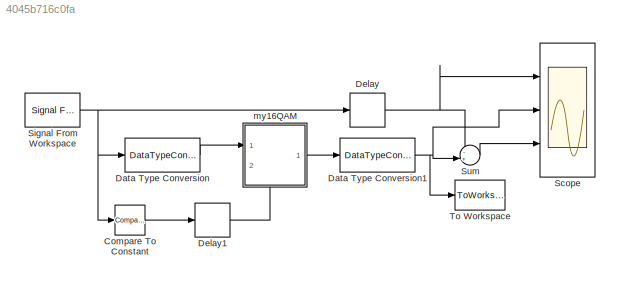
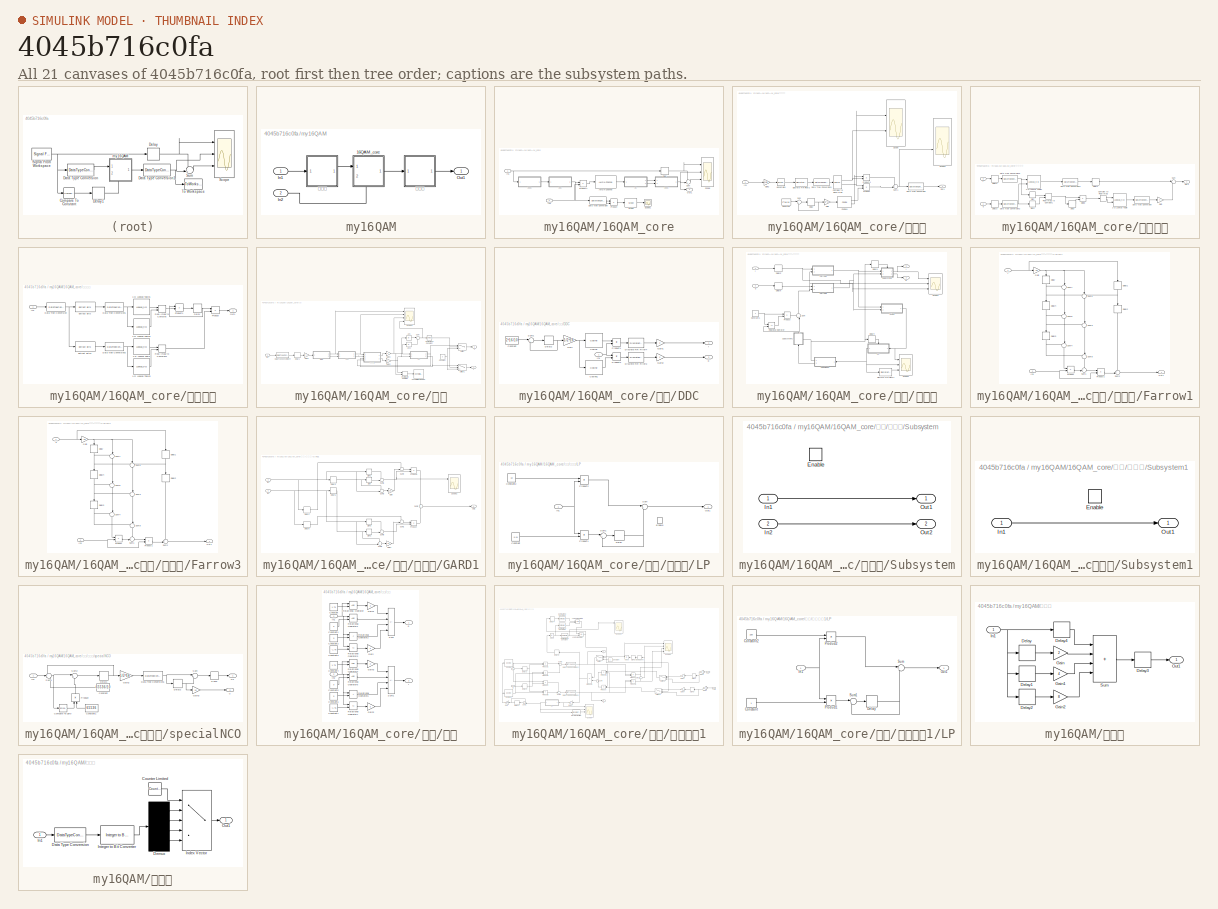
[diagram: thumbnail index - all 21 canvases of the model, root first then tree order]
MODEL slx_4045b716c0fa
KIND model
CONFIG AbsTol = auto
CONFIG EnableMultiTasking = off
CONFIG FixedStep = auto
CONFIG MaxStep = auto
CONFIG MinStep = auto
CONFIG RelTol = 1e-3
CONFIG SampleTimeConstraint = Unconstrained
CONFIG SolverName = VariableStepAuto
CONFIG StartTime = 0.0
CONFIG StopTime = 200
BLOCK [Reference] Compare To Constant  REF=simulink/Logic and Bit
Operations/Compare
To Constant
  Ports = [1, 1]
  SourceBlock = simulink/Logic and Bit\nOperations/Compare\nTo Constant
  SourceProductBaseCode = SL
  SourceType = Compare To Constant
BLOCK [DataTypeConversion] Data Type Conversion
  OutDataTypeStr = int8
  RndMeth = Floor
  SaturateOnIntegerOverflow = off
BLOCK [DataTypeConversion] Data Type Conversion1
  OutDataTypeStr = boolean
  RndMeth = Floor
  SaturateOnIntegerOverflow = off
BLOCK [Delay] Delay
  DelayLength = 48
  InitialCondition = 0
  InputPortMap = u0
  Ports = [1, 1]
  SampleTime = 0.01/4
BLOCK [Delay] Delay1
  DelayLength = 3
  InitialCondition = 0
  InputPortMap = u0
  Ports = [1, 1]
  SampleTime = 0.01
BLOCK [Scope] Scope
  Floating = off
  NumInputPorts = 3
  Ports = [3]
  ScopeSpecificationString = Simulink.scopes.TimeScopeBlockCfg('CurrentConfiguration', extmgr.ConfigurationSet(extmgr.Configuration('Core','General UI',true),extmgr.Configuration('Core','Source UI',true),extmgr.Configuration('Sources','WiredSimulink',true,'DataLoggingVariableName','ScopeData1'),extmgr.Configuration('Visuals','Time Domain',true,'SerializedDisplays',{struct('MinYLimReal','-0.25','MaxYLimReal','2.25','YLabelReal...<+2734ch>
BLOCK [Reference] Signal From Workspace  REF=dspsrcs4/Signal From
Workspace
  Ports = [0, 1]
  SourceBlock = dspsrcs4/Signal From\nWorkspace
  SourceProductBaseCode = DS
  SourceType = Signal From Workspace
BLOCK [Sum] Sum
  AccumDataTypeStr = double
  Inputs = -+|
  OutDataTypeStr = double
  Ports = [2, 1]
BLOCK [ToWorkspace] To Workspace
  MaxDataPoints = inf
  Ports = [1]
  SampleTime = -1
  Save2DSignal = 2-D array (concatenate along first dimension)
  VariableName = yout
BLOCK [SubSystem] my16QAM
  PortSchema = {"entries":[{"content":{"sides":[{"content":{"connectorIds":["In1"]},"type":"ConnectorPlacement.EquallySpacedRectSide","uuid":"334856f7-0435-4d2a-9505-d8ddabddb349"},{"content":{"connectorIds":["Out1"],"side":"RIGHT"},"type":"ConnectorPlacement.EquallySpacedRectSide","uuid":"e3f7a207-8233-4ece-b29f-ed21cdef778a"},{"content":{"connectorIds":[],"side":"TOP"},"type":"ConnectorPlacement.EquallySpacedR...<+391ch>
  Ports = [2, 1]
  RequestExecContextInheritance = off
BLOCK [SubSystem] my16QAM/16QAM_core
  PortSchema = {"entries":[{"content":{"sides":[{"content":{"connectorIds":["In1"]},"type":"ConnectorPlacement.EquallySpacedRectSide","uuid":"334856f7-0435-4d2a-9505-d8ddabddb349"},{"content":{"connectorIds":["Out1"],"side":"RIGHT"},"type":"ConnectorPlacement.EquallySpacedRectSide","uuid":"e3f7a207-8233-4ece-b29f-ed21cdef778a"},{"content":{"connectorIds":[],"side":"TOP"},"type":"ConnectorPlacement.EquallySpacedR...<+389ch>
  Ports = [2, 1]
  RequestExecContextInheritance = off
BLOCK [Reference] my16QAM/16QAM_core/AWGN Channel  REF=commchan3/AWGN
Channel
  Ports = [1, 1]
  SourceBlock = commchan3/AWGN\nChannel
  SourceProductBaseCode = CM
  SourceType = AWGN Channel
  UserDataPersistent = on
BLOCK [DataTypeConversion] my16QAM/16QAM_core/Data Type Conversion
  RndMeth = Floor
  SaturateOnIntegerOverflow = off
BLOCK [Delay] my16QAM/16QAM_core/Delay
  DelayLength = 10
  InitialCondition = 0
  InputPortMap = u0
  Ports = [1, 1]
  SampleTime = 0.01
BLOCK [Inport] my16QAM/16QAM_core/In1
BLOCK [Inport] my16QAM/16QAM_core/In2
  Port = 2
BLOCK [Reference] my16QAM/16QAM_core/Mean  REF=dspstat3/Mean
  Ports = [1, 1]
  SourceBlock = dspstat3/Mean
  SourceProductBaseCode = DS
  SourceType = Mean
  UserDataPersistent = on
BLOCK [Outport] my16QAM/16QAM_core/Out1
BLOCK [Product] my16QAM/16QAM_core/Product
  Ports = [2, 1]
BLOCK [Product] my16QAM/16QAM_core/Product1
  Ports = [2, 1]
BLOCK [Scope] my16QAM/16QAM_core/Scope
  Floating = off
  NumInputPorts = 3
  Ports = [3]
  ScopeSpecificationString = Simulink.scopes.TimeScopeBlockCfg('CurrentConfiguration', extmgr.ConfigurationSet(extmgr.Configuration('Core','General UI',true),extmgr.Configuration('Core','Source UI',true),extmgr.Configuration('Sources','WiredSimulink',true,'DataLoggingVariableName','ScopeData1'),extmgr.Configuration('Visuals','Time Domain',true,'SerializedDisplays',{struct('MinYLimReal','-3.75','MaxYLimReal','33.75','YLabelRea...<+2699ch>
BLOCK [Scope] my16QAM/16QAM_core/Scope1
  Floating = off
  NumInputPorts = 1
  Ports = [1]
  ScopeSpecificationString = Simulink.scopes.TimeScopeBlockCfg('CurrentConfiguration', extmgr.ConfigurationSet(extmgr.Configuration('Core','General UI',true),extmgr.Configuration('Core','Source UI',true),extmgr.Configuration('Sources','WiredSimulink',true,'DataLoggingVariableName','ScopeData1'),extmgr.Configuration('Visuals','Time Domain',true,'SerializedDisplays',{struct('MinYLimReal','0.02759','MaxYLimReal','0.02792','YLabe...<+1465ch>
BLOCK [Sum] my16QAM/16QAM_core/Sum
  AccumDataTypeStr = double
  Inputs = -+|
  OutDataTypeStr = double
  Ports = [2, 1]
BLOCK [SubSystem] my16QAM/16QAM_core/发射机
  Ports = [1, 1]
  RequestExecContextInheritance = off
BLOCK [ComplexToRealImag] my16QAM/16QAM_core/发射机/Complex to Real-Imag
  Ports = [1, 2]
BLOCK [Constant] my16QAM/16QAM_core/发射机/Constant
  Value = 2^16/10
BLOCK [Reference] my16QAM/16QAM_core/发射机/Cosine1  REF=simulink/Lookup
Tables/Cosine
  Ports = [1, 2]
  SourceBlock = simulink/Lookup\nTables/Cosine
  SourceProductBaseCode = SL
  SourceType = Sine and Cosine
BLOCK [DataTypeConversion] my16QAM/16QAM_core/发射机/Data Type Conversion
  OutDataTypeStr = double
  RndMeth = Floor
  SaturateOnIntegerOverflow = off
BLOCK [DataTypeConversion] my16QAM/16QAM_core/发射机/Data Type Conversion1
  OutDataTypeStr = fixdt(1,32,28)
  RndMeth = Floor
  SaturateOnIntegerOverflow = off
BLOCK [Delay] my16QAM/16QAM_core/发射机/Delay
  DelayLength = 1
  InitialCondition = 0
  InputPortMap = u0
  Ports = [1, 1]
  SampleTime = 0.001
BLOCK [DiscreteFir] my16QAM/16QAM_core/发射机/Discrete FIR Filter2
  Coefficients = [-0.0119566381847077	-0.00554510890605436	0.00241382573479933	0.0111377436911783	0.0196550101509641	0.0268984171784200	0.0318197882559029	0.0335144832609033	0.0313427539687735	0.0250342434675171	0.0147627477015526	0.00118065713392810	-0.0145939012931128	-0.0310396234166703	-0.0463415853998726	-0.0585399944060724	-0.0657057782491950	-0.0661271775764019	-0.0584895064408425	-0.0420300071775653	-0.016...<+773ch>  <repeated x3 — deduplicated; at blocks: Discrete FIR Filter2, Discrete FIR Filter3, Discrete FIR Filter4>
  InputPortMap = u0
  OutputPortMap = o0
  Ports = [1, 1]
BLOCK [Gain] my16QAM/16QAM_core/发射机/Gain
  Gain = 1/2^16
BLOCK [Gain] my16QAM/16QAM_core/发射机/Gain2
  Gain = 1/sqrt(2)/3
  OutDataTypeStr = fixdt(1,32,28)
BLOCK [Inport] my16QAM/16QAM_core/发射机/In1
BLOCK [Outport] my16QAM/16QAM_core/发射机/Out1
BLOCK [Product] my16QAM/16QAM_core/发射机/Product
  OutDataTypeStr = fixdt(1,32,28)
  Ports = [2, 1]
BLOCK [Product] my16QAM/16QAM_core/发射机/Product1
  OutDataTypeStr = fixdt(1,32,28)
  Ports = [2, 1]
BLOCK [Scope] my16QAM/16QAM_core/发射机/Scope
  Floating = off
  NumInputPorts = 2
  Ports = [2]
  ScopeSpecificationString = Simulink.scopes.TimeScopeBlockCfg('CurrentConfiguration', extmgr.ConfigurationSet(extmgr.Configuration('Core','General UI',true),extmgr.Configuration('Core','Source UI',true),extmgr.Configuration('Sources','WiredSimulink',true,'DataLoggingVariableName','ScopeData3'),extmgr.Configuration('Visuals','Time Domain',true,'SerializedDisplays',{struct('MinYLimReal','-0.50844','MaxYLimReal','0.5141','YLabe...<+2302ch>
BLOCK [Scope] my16QAM/16QAM_core/发射机/Scope2
  Floating = off
  NumInputPorts = 2
  Ports = [2]
  ScopeSpecificationString = Simulink.scopes.TimeScopeBlockCfg('CurrentConfiguration', extmgr.ConfigurationSet(extmgr.Configuration('Core','General UI',true),extmgr.Configuration('Core','Source UI',true),extmgr.Configuration('Sources','WiredSimulink',true,'DataLoggingVariableName','ScopeData1'),extmgr.Configuration('Visuals','Time Domain',true,'SerializedDisplays',{struct('MinYLimReal','-1.00000','MaxYLimReal','1.00000','YLab...<+2201ch>
BLOCK [Sum] my16QAM/16QAM_core/发射机/Sum
  Inputs = |++
  OutDataTypeStr = fixdt(0,32,16)
  OutMax = [2^16-1]
  OutMin = [0]
  Ports = [2, 1]
BLOCK [Sum] my16QAM/16QAM_core/发射机/Sum1
  Inputs = ++|
  OutDataTypeStr = fixdt(1,32,28)
  Ports = [2, 1]
BLOCK [Reference] my16QAM/16QAM_core/发射机/Upsample1  REF=dspsigops/Upsample
  Ports = [1, 1]
  SourceBlock = dspsigops/Upsample
  SourceProductBaseCode = DS
  SourceType = Upsample
  UserDataPersistent = on
BLOCK [SubSystem] my16QAM/16QAM_core/差分解调
  Ports = [2, 1]
  RequestExecContextInheritance = off
BLOCK [Lookup_n-D] my16QAM/16QAM_core/差分解调/2-D Lookup Table
  BreakpointsForDimension1 = [-1 0 1]
  BreakpointsForDimension2 = [-1 0 1]
  ExtrapMethod = Clip
  InputPortMap = u0,u1
  InternalRulePriority = Speed
  Ports = [2, 1]
  RndMeth = Simplest
  Table = [0 3 0;2 0 1;0 0 0]
BLOCK [Lookup_n-D] my16QAM/16QAM_core/差分解调/2-D Lookup Table1
  BreakpointsForDimension1 = [-3 -1 1 3]
  BreakpointsForDimension2 = [-3 -1 1 3]
  ExtrapMethod = Clip
  InputPortMap = u0,u1
  InternalRulePriority = Speed
  Ports = [2, 1]
  RndMeth = Simplest
  Table = [0 2 1 0; 1 3 3 2; 2 3 3 1; 0 1 2 0]
BLOCK [ComplexToRealImag] my16QAM/16QAM_core/差分解调/Complex to Real-Imag
  Ports = [1, 2]
BLOCK [DataTypeConversion] my16QAM/16QAM_core/差分解调/Data Type Conversion
  OutDataTypeStr = uint8
  RndMeth = Floor
  SaturateOnIntegerOverflow = off
BLOCK [DataTypeConversion] my16QAM/16QAM_core/差分解调/Data Type Conversion1
  OutDataTypeStr = uint8
  RndMeth = Floor
  SaturateOnIntegerOverflow = off
BLOCK [DataTypeConversion] my16QAM/16QAM_core/差分解调/Data Type Conversion2
  OutDataTypeStr = int8
  RndMeth = Floor
  SaturateOnIntegerOverflow = off
BLOCK [DataTypeConversion] my16QAM/16QAM_core/差分解调/Data Type Conversion3
  OutDataTypeStr = int8
  RndMeth = Floor
  SaturateOnIntegerOverflow = off
BLOCK [Delay] my16QAM/16QAM_core/差分解调/Delay
  DelayLength = 1
  InitialCondition = 1
  InputPortMap = u0
  Ports = [1, 1]
  SampleTime = 0.01
BLOCK [Delay] my16QAM/16QAM_core/差分解调/Delay1
  DelayLength = 1
  InitialCondition = 1
  InputPortMap = u0
  Ports = [1, 1]
  SampleTime = 0.01
BLOCK [Delay] my16QAM/16QAM_core/差分解调/Delay2
  DelayLength = 1
  InitialCondition = 1
  InputPortMap = u0
  Ports = [1, 1]
  SampleTime = 0.01
BLOCK [Delay] my16QAM/16QAM_core/差分解调/Delay3
  DelayLength = 1
  InitialCondition = 1
  InputPortMap = u0
  Ports = [1, 1]
  SampleTime = 0.01
BLOCK [Product] my16QAM/16QAM_core/差分解调/Divide
  Inputs = */
  OutDataTypeStr = int8
  Ports = [2, 1]
BLOCK [Gain] my16QAM/16QAM_core/差分解调/Gain
  Gain = 4
BLOCK [Outport] my16QAM/16QAM_core/差分解调/Out1
BLOCK [RealImagToComplex] my16QAM/16QAM_core/差分解调/Real-Imag to Complex1
  Ports = [2, 1]
BLOCK [Signum] my16QAM/16QAM_core/差分解调/Sign
BLOCK [Signum] my16QAM/16QAM_core/差分解调/Sign1
BLOCK [Sum] my16QAM/16QAM_core/差分解调/Sum
  Inputs = |++
  Ports = [2, 1]
BLOCK [Inport] my16QAM/16QAM_core/差分解调/i
  Port = 2
BLOCK [Inport] my16QAM/16QAM_core/差分解调/q
BLOCK [SubSystem] my16QAM/16QAM_core/差分调制
  Ports = [1, 1]
  RequestExecContextInheritance = off
BLOCK [Lookup_n-D] my16QAM/16QAM_core/差分调制/1-D Lookup Table
  BreakpointsForDimension1 = [0:3]
  ExtrapMethod = Clip
  InputPortMap = u0
  InternalRulePriority = Speed
  NumberOfTableDimensions = 1
  Ports = [1, 1]
  RndMeth = Simplest
  Table = [3 1 3 1]
BLOCK [Lookup_n-D] my16QAM/16QAM_core/差分调制/1-D Lookup Table1
  BreakpointsForDimension1 = [0:3]
  ExtrapMethod = Clip
  InputPortMap = u0
  InternalRulePriority = Speed
  NumberOfTableDimensions = 1
  Ports = [1, 1]
  RndMeth = Simplest
  Table = [1 0 0 -1]
BLOCK [Lookup_n-D] my16QAM/16QAM_core/差分调制/1-D Lookup Table2
  BreakpointsForDimension1 = [0:3]
  ExtrapMethod = Clip
  InputPortMap = u0
  InternalRulePriority = Speed
  NumberOfTableDimensions = 1
  Ports = [1, 1]
  RndMeth = Simplest
  Table = [0 1 -1 0]
BLOCK [Lookup_n-D] my16QAM/16QAM_core/差分调制/1-D Lookup Table3
  BreakpointsForDimension1 = [0:3]
  ExtrapMethod = Clip
  InputPortMap = u0
  InternalRulePriority = Speed
  NumberOfTableDimensions = 1
  Ports = [1, 1]
  RndMeth = Simplest
  Table = [3 3 1 1]
BLOCK [DataTypeConversion] my16QAM/16QAM_core/差分调制/Data Type Conversion
  OutDataTypeStr = fixdt(0,4,0)
  RndMeth = Floor
  SaturateOnIntegerOverflow = off
BLOCK [DataTypeConversion] my16QAM/16QAM_core/差分调制/Data Type Conversion1
  OutDataTypeStr = int8
  RndMeth = Floor
  SaturateOnIntegerOverflow = off
BLOCK [DataTypeConversion] my16QAM/16QAM_core/差分调制/Data Type Conversion2
  OutDataTypeStr = fixdt(0,4,0)
  RndMeth = Floor
  SaturateOnIntegerOverflow = off
BLOCK [Delay] my16QAM/16QAM_core/差分调制/Delay
  DelayLength = 1
  InitialCondition = 1
  InputPortMap = u0
  Ports = [1, 1]
  SampleTime = 0.01
BLOCK [Reference] my16QAM/16QAM_core/差分调制/Extract Bits  REF=simulink/Logic and Bit
Operations/Extract Bits
  Ports = [1, 1]
  SourceBlock = simulink/Logic and Bit\nOperations/Extract Bits
  SourceProductBaseCode = SL
  SourceType = Extract Bits
BLOCK [Reference] my16QAM/16QAM_core/差分调制/Extract Bits1  REF=simulink/Logic and Bit
Operations/Extract Bits
  Ports = [1, 1]
  SourceBlock = simulink/Logic and Bit\nOperations/Extract Bits
  SourceProductBaseCode = SL
  SourceType = Extract Bits
BLOCK [Inport] my16QAM/16QAM_core/差分调制/In1
BLOCK [Outport] my16QAM/16QAM_core/差分调制/Out1
BLOCK [Product] my16QAM/16QAM_core/差分调制/Product
  OutDataTypeStr = fixdt(1,32,28)
  Ports = [2, 1]
BLOCK [Product] my16QAM/16QAM_core/差分调制/Product1
  OutDataTypeStr = int8
  Ports = [2, 1]
BLOCK [RealImagToComplex] my16QAM/16QAM_core/差分调制/Real-Imag to Complex
  Ports = [2, 1]
BLOCK [RealImagToComplex] my16QAM/16QAM_core/差分调制/Real-Imag to Complex1
  Ports = [2, 1]
BLOCK [SubSystem] my16QAM/16QAM_core/解调
  Ports = [1, 2]
  RequestExecContextInheritance = off
BLOCK [Abs] my16QAM/16QAM_core/解调/Abs
  SaturateOnIntegerOverflow = off
BLOCK [Abs] my16QAM/16QAM_core/解调/Abs1
  SaturateOnIntegerOverflow = off
BLOCK [Reference] my16QAM/16QAM_core/解调/Compare To Constant  REF=simulink/Logic and Bit
Operations/Compare
To Constant
  Ports = [1, 1]
  SourceBlock = simulink/Logic and Bit\nOperations/Compare\nTo Constant
  SourceProductBaseCode = SL
  SourceType = Compare To Constant
BLOCK [Constant] my16QAM/16QAM_core/解调/Constant
  SampleTime = 0.01
  Value = 3
BLOCK [ConstellationDiagram] my16QAM/16QAM_core/解调/Constellation Diagram
  Ports = [1]
  ScopeSpecificationString = comm.scopes.ConstellationDiagramBlockCfg('CurrentConfiguration', extmgr.ConfigurationSet(extmgr.Configuration('Core','General UI',true),extmgr.Configuration('Core','Source UI',true),extmgr.Configuration('Sources','WiredSimulink',true),extmgr.Configuration('Sources','Simulink',false),extmgr.Configuration('Sources','File',false),extmgr.Configuration('Sources','Workspace',false),extmgr.Configuration(...<+2438ch>
BLOCK [SubSystem] my16QAM/16QAM_core/解调/DDC
  Ports = [1, 2]
  RequestExecContextInheritance = off
BLOCK [Constant] my16QAM/16QAM_core/解调/DDC/Constant
  Value = 2^16/10
BLOCK [Reference] my16QAM/16QAM_core/解调/DDC/Cosine  REF=simulink/Lookup
Tables/Cosine
  Ports = [1, 1]
  SourceBlock = simulink/Lookup\nTables/Cosine
  SourceProductBaseCode = SL
  SourceType = Sine and Cosine
BLOCK [Reference] my16QAM/16QAM_core/解调/DDC/Cosine1  REF=simulink/Lookup
Tables/Cosine
  Ports = [1, 1]
  SourceBlock = simulink/Lookup\nTables/Cosine
  SourceProductBaseCode = SL
  SourceType = Sine and Cosine
BLOCK [Delay] my16QAM/16QAM_core/解调/DDC/Delay2
  DelayLength = 1
  InitialCondition = 0
  InputPortMap = u0
  Ports = [1, 1]
  SampleTime = 0.001
BLOCK [DiscreteFir] my16QAM/16QAM_core/解调/DDC/Discrete FIR Filter3
  InputPortMap = u0
  OutputPortMap = o0
  Ports = [1, 1]
BLOCK [DiscreteFir] my16QAM/16QAM_core/解调/DDC/Discrete FIR Filter4
  InputPortMap = u0
  OutputPortMap = o0
  Ports = [1, 1]
BLOCK [Gain] my16QAM/16QAM_core/解调/DDC/Gain
  Gain = 1/2^16
BLOCK [Gain] my16QAM/16QAM_core/解调/DDC/Gain1
  Gain = 2
  OutDataTypeStr = fixdt(1,32,28)
BLOCK [Gain] my16QAM/16QAM_core/解调/DDC/Gain2
  Gain = 2
  OutDataTypeStr = fixdt(1,32,28)
BLOCK [Inport] my16QAM/16QAM_core/解调/DDC/In1
BLOCK [Product] my16QAM/16QAM_core/解调/DDC/Product1
  OutDataTypeStr = fixdt(1,32,28)
  Ports = [2, 1]
BLOCK [Product] my16QAM/16QAM_core/解调/DDC/Product2
  OutDataTypeStr = fixdt(1,32,28)
  Ports = [2, 1]
BLOCK [Sum] my16QAM/16QAM_core/解调/DDC/Sum1
  Inputs = |++
  OutDataTypeStr = fixdt(0,32,16)
  OutMax = [2^16-1]
  OutMin = [0]
  Ports = [2, 1]
BLOCK [Outport] my16QAM/16QAM_core/解调/DDC/i
BLOCK [Outport] my16QAM/16QAM_core/解调/DDC/q
  Port = 2
BLOCK [DataTypeConversion] my16QAM/16QAM_core/解调/Data Type Conversion4
  OutDataTypeStr = fixdt(1,32,28)
  RndMeth = Floor
  SaturateOnIntegerOverflow = off
BLOCK [Delay] my16QAM/16QAM_core/解调/Delay1
  DelayLength = 1
  InitialCondition = 0
  InputPortMap = u0
  Ports = [1, 1]
  SampleTime = 0.001
BLOCK [Gain] my16QAM/16QAM_core/解调/Gain1
  Gain = 2
  OutDataTypeStr = fixdt(1,32,28)
BLOCK [Gain] my16QAM/16QAM_core/解调/Gain2
  Gain = 2
  OutDataTypeStr = fixdt(1,32,28)
BLOCK [Gain] my16QAM/16QAM_core/解调/Gain3
  Gain = 2
  OutDataTypeStr = fixdt(1,32,28)
BLOCK [Inport] my16QAM/16QAM_core/解调/In1
BLOCK [RealImagToComplex] my16QAM/16QAM_core/解调/Real-Imag to Complex
  Ports = [2, 1]
BLOCK [Scope] my16QAM/16QAM_core/解调/Scope3
  Floating = off
  NumInputPorts = 4
  Ports = [4]
  ScopeSpecificationString = Simulink.scopes.TimeScopeBlockCfg('CurrentConfiguration', extmgr.ConfigurationSet(extmgr.Configuration('Core','General UI',true),extmgr.Configuration('Core','Source UI',true),extmgr.Configuration('Sources','WiredSimulink',true,'DataLoggingVariableName','ScopeData1'),extmgr.Configuration('Visuals','Time Domain',true,'SerializedDisplays',{struct('MinYLimReal','-3.94044','MaxYLimReal','3.98282','YLab...<+3843ch>
BLOCK [Sum] my16QAM/16QAM_core/解调/Sum
  Inputs = |++
  OutDataTypeStr = fixdt(1,32,28)
  Ports = [2, 1]
BLOCK [Switch] my16QAM/16QAM_core/解调/Switch
  Criteria = u2 > Threshold
  InputSameDT = off
  SaturateOnIntegerOverflow = off
BLOCK [Switch] my16QAM/16QAM_core/解调/Switch1
  Criteria = u2 > Threshold
  InputSameDT = off
  SaturateOnIntegerOverflow = off
BLOCK [Outport] my16QAM/16QAM_core/解调/i
  Port = 2
BLOCK [Outport] my16QAM/16QAM_core/解调/q
BLOCK [SubSystem] my16QAM/16QAM_core/解调/位同步
  Ports = [2, 2]
  RequestExecContextInheritance = off
BLOCK [Constant] my16QAM/16QAM_core/解调/位同步/Constant1
  OutDataTypeStr = fixdt(1,32,28)
  SampleTime = 0.01
BLOCK [Delay] my16QAM/16QAM_core/解调/位同步/Delay3
  InitialCondition = 0
  InputPortMap = u0
  Ports = [1, 1]
BLOCK [Delay] my16QAM/16QAM_core/解调/位同步/Delay4
  InitialCondition = 0
  InputPortMap = u0
  Ports = [1, 1]
BLOCK [Delay] my16QAM/16QAM_core/解调/位同步/Delay5
  DelayLength = 1
  InitialCondition = 0
  InputPortMap = u0
  Ports = [1, 1]
  SampleTime = 0.001
BLOCK [Delay] my16QAM/16QAM_core/解调/位同步/Delay6
  DelayLength = 1
  InitialCondition = 0
  InputPortMap = u0
  Ports = [1, 1]
  SampleTime = 0.001
BLOCK [DiscreteFir] my16QAM/16QAM_core/解调/位同步/Discrete FIR Filter4
  Coefficients = [5.38827670327720e-05	8.37859864059126e-06	9.02577071280919e-06	9.70599515144445e-06	1.04165818557214e-05	1.11621497031896e-05	1.19399905979190e-05	1.27547662205456e-05	1.36038280216497e-05	1.44919424768979e-05	1.54165002359471e-05	1.63821647738810e-05	1.73863448370645e-05	1.84338552877666e-05	1.95220392829791e-05	2.06555805408248e-05	2.18322698177188e-05	2.30558422383026e-05	2.43269378472256e-05	...<+12509ch>
  Commented = through
  InputPortMap = u0
  OutputPortMap = o0
  Ports = [1, 1]
BLOCK [SubSystem] my16QAM/16QAM_core/解调/位同步/Farrow1
  Ports = [2, 1]
  RequestExecContextInheritance = off
BLOCK [Delay] my16QAM/16QAM_core/解调/位同步/Farrow1/Delay
  DelayLength = 1
  InitialCondition = 0
  InputPortMap = u0
  NameLocation = left
  Ports = [1, 1]
BLOCK [Delay] my16QAM/16QAM_core/解调/位同步/Farrow1/Delay1
  DelayLength = 1
  InitialCondition = 0
  InputPortMap = u0
  NameLocation = left
  Ports = [1, 1]
BLOCK [Delay] my16QAM/16QAM_core/解调/位同步/Farrow1/Delay2
  DelayLength = 1
  InitialCondition = 0
  InputPortMap = u0
  NameLocation = left
  Ports = [1, 1]
BLOCK [Delay] my16QAM/16QAM_core/解调/位同步/Farrow1/Delay3
  DelayLength = 1
  InitialCondition = 0
  InputPortMap = u0
  NameLocation = left
  Ports = [1, 1]
BLOCK [Delay] my16QAM/16QAM_core/解调/位同步/Farrow1/Delay4
  DelayLength = 1
  InitialCondition = 0
  InputPortMap = u0
  NameLocation = left
  Ports = [1, 1]
BLOCK [Gain] my16QAM/16QAM_core/解调/位同步/Farrow1/Gain
  Gain = -0.5
  OutDataTypeStr = fixdt(1,32,28)
BLOCK [Inport] my16QAM/16QAM_core/解调/位同步/Farrow1/In3
  Port = 2
BLOCK [Outport] my16QAM/16QAM_core/解调/位同步/Farrow1/Out1
BLOCK [Product] my16QAM/16QAM_core/解调/位同步/Farrow1/Product
  OutDataTypeStr = fixdt(1,32,28)
  Ports = [2, 1]
BLOCK [Product] my16QAM/16QAM_core/解调/位同步/Farrow1/Product1
  OutDataTypeStr = fixdt(1,32,28)
  Ports = [2, 1]
BLOCK [Sum] my16QAM/16QAM_core/解调/位同步/Farrow1/Sum1
  Inputs = ++|
  Ports = [2, 1]
BLOCK [Sum] my16QAM/16QAM_core/解调/位同步/Farrow1/Sum2
  Inputs = ++|
  OutDataTypeStr = fixdt(1,32,28)
  Ports = [2, 1]
BLOCK [Sum] my16QAM/16QAM_core/解调/位同步/Farrow1/Sum3
  Inputs = ++|
  NameLocation = left
  Ports = [2, 1]
BLOCK [Sum] my16QAM/16QAM_core/解调/位同步/Farrow1/Sum4
  Inputs = -+|
  NameLocation = left
  Ports = [2, 1]
BLOCK [Sum] my16QAM/16QAM_core/解调/位同步/Farrow1/Sum5
  Inputs = -++
  NameLocation = left
  Ports = [3, 1]
BLOCK [Sum] my16QAM/16QAM_core/解调/位同步/Farrow1/Sum6
  Inputs = ++|
  NameLocation = left
  Ports = [2, 1]
BLOCK [Sum] my16QAM/16QAM_core/解调/位同步/Farrow1/Sum7
  Inputs = +-|
  NameLocation = left
  Ports = [2, 1]
BLOCK [Sum] my16QAM/16QAM_core/解调/位同步/Farrow1/Sum8
  Inputs = ++|
  NameLocation = left
  Ports = [2, 1]
BLOCK [Inport] my16QAM/16QAM_core/解调/位同步/Farrow1/i
BLOCK [SubSystem] my16QAM/16QAM_core/解调/位同步/Farrow3
  Ports = [2, 1]
  RequestExecContextInheritance = off
BLOCK [Delay] my16QAM/16QAM_core/解调/位同步/Farrow3/Delay
  DelayLength = 1
  InitialCondition = 0
  InputPortMap = u0
  NameLocation = left
  Ports = [1, 1]
BLOCK [Delay] my16QAM/16QAM_core/解调/位同步/Farrow3/Delay1
  DelayLength = 1
  InitialCondition = 0
  InputPortMap = u0
  NameLocation = left
  Ports = [1, 1]
BLOCK [Delay] my16QAM/16QAM_core/解调/位同步/Farrow3/Delay2
  DelayLength = 1
  InitialCondition = 0
  InputPortMap = u0
  NameLocation = left
  Ports = [1, 1]
BLOCK [Delay] my16QAM/16QAM_core/解调/位同步/Farrow3/Delay3
  DelayLength = 1
  InitialCondition = 0
  InputPortMap = u0
  NameLocation = left
  Ports = [1, 1]
BLOCK [Delay] my16QAM/16QAM_core/解调/位同步/Farrow3/Delay4
  DelayLength = 1
  InitialCondition = 0
  InputPortMap = u0
  NameLocation = left
  Ports = [1, 1]
BLOCK [Gain] my16QAM/16QAM_core/解调/位同步/Farrow3/Gain
  Gain = -0.5
  OutDataTypeStr = fixdt(1,32,28)
BLOCK [Inport] my16QAM/16QAM_core/解调/位同步/Farrow3/In3
  Port = 2
BLOCK [Outport] my16QAM/16QAM_core/解调/位同步/Farrow3/Out1
BLOCK [Product] my16QAM/16QAM_core/解调/位同步/Farrow3/Product
  OutDataTypeStr = fixdt(1,32,28)
  Ports = [2, 1]
BLOCK [Product] my16QAM/16QAM_core/解调/位同步/Farrow3/Product1
  OutDataTypeStr = fixdt(1,32,28)
  Ports = [2, 1]
BLOCK [Sum] my16QAM/16QAM_core/解调/位同步/Farrow3/Sum1
  Inputs = ++|
  Ports = [2, 1]
BLOCK [Sum] my16QAM/16QAM_core/解调/位同步/Farrow3/Sum2
  Inputs = ++|
  OutDataTypeStr = fixdt(1,32,28)
  Ports = [2, 1]
BLOCK [Sum] my16QAM/16QAM_core/解调/位同步/Farrow3/Sum3
  Inputs = ++|
  NameLocation = left
  Ports = [2, 1]
BLOCK [Sum] my16QAM/16QAM_core/解调/位同步/Farrow3/Sum4
  Inputs = -+|
  NameLocation = left
  Ports = [2, 1]
BLOCK [Sum] my16QAM/16QAM_core/解调/位同步/Farrow3/Sum5
  Inputs = -++
  NameLocation = left
  Ports = [3, 1]
BLOCK [Sum] my16QAM/16QAM_core/解调/位同步/Farrow3/Sum6
  Inputs = ++|
  NameLocation = left
  Ports = [2, 1]
BLOCK [Sum] my16QAM/16QAM_core/解调/位同步/Farrow3/Sum7
  Inputs = +-|
  NameLocation = left
  Ports = [2, 1]
BLOCK [Sum] my16QAM/16QAM_core/解调/位同步/Farrow3/Sum8
  Inputs = ++|
  NameLocation = left
  Ports = [2, 1]
BLOCK [Inport] my16QAM/16QAM_core/解调/位同步/Farrow3/q
BLOCK [SubSystem] my16QAM/16QAM_core/解调/位同步/GARD1
  Ports = [2, 1]
  RequestExecContextInheritance = off
BLOCK [Delay] my16QAM/16QAM_core/解调/位同步/GARD1/Delay1
  DelayLength = 5
  InitialCondition = 0
  InputPortMap = u0
  Ports = [1, 1]
BLOCK [Delay] my16QAM/16QAM_core/解调/位同步/GARD1/Delay3
  DelayLength = 10
  InitialCondition = 0
  InputPortMap = u0
  Ports = [1, 1]
BLOCK [Delay] my16QAM/16QAM_core/解调/位同步/GARD1/Delay5
  DelayLength = 10
  InitialCondition = 0
  InputPortMap = u0
  Ports = [1, 1]
BLOCK [Delay] my16QAM/16QAM_core/解调/位同步/GARD1/Delay6
  DelayLength = 5
  InitialCondition = 0
  InputPortMap = u0
  Ports = [1, 1]
BLOCK [Gain] my16QAM/16QAM_core/解调/位同步/GARD1/Gain
  Gain = 1/2
  OutDataTypeStr = fixdt(1,32,28)
BLOCK [Gain] my16QAM/16QAM_core/解调/位同步/GARD1/Gain1
  Gain = 1/2
  OutDataTypeStr = fixdt(1,32,28)
BLOCK [Inport] my16QAM/16QAM_core/解调/位同步/GARD1/In1
BLOCK [Inport] my16QAM/16QAM_core/解调/位同步/GARD1/In2
  Port = 2
BLOCK [Outport] my16QAM/16QAM_core/解调/位同步/GARD1/Out1
BLOCK [Product] my16QAM/16QAM_core/解调/位同步/GARD1/Product
  OutDataTypeStr = fixdt(1,32,28)
  Ports = [2, 1]
BLOCK [Product] my16QAM/16QAM_core/解调/位同步/GARD1/Product1
  OutDataTypeStr = fixdt(1,32,28)
  Ports = [2, 1]
BLOCK [Scope] my16QAM/16QAM_core/解调/位同步/GARD1/Scope2
  Floating = off
  NumInputPorts = 3
  Ports = [3]
  ScopeSpecificationString = Simulink.scopes.TimeScopeBlockCfg('CurrentConfiguration', extmgr.ConfigurationSet(extmgr.Configuration('Core','General UI',true),extmgr.Configuration('Core','Source UI',true),extmgr.Configuration('Sources','WiredSimulink',true,'DataLoggingVariableName','ScopeData2'),extmgr.Configuration('Visuals','Time Domain',true,'SerializedDisplays',{struct('MinYLimReal','-2.5','MaxYLimReal','2.5','YLabelReal',...<+2997ch>
BLOCK [Signum] my16QAM/16QAM_core/解调/位同步/GARD1/Sign
BLOCK [Signum] my16QAM/16QAM_core/解调/位同步/GARD1/Sign1
BLOCK [Signum] my16QAM/16QAM_core/解调/位同步/GARD1/Sign2
BLOCK [Signum] my16QAM/16QAM_core/解调/位同步/GARD1/Sign3
BLOCK [Sum] my16QAM/16QAM_core/解调/位同步/GARD1/Sum1
  Inputs = +-|
  OutDataTypeStr = fixdt(1,32,28)
  Ports = [2, 1]
BLOCK [Sum] my16QAM/16QAM_core/解调/位同步/GARD1/Sum2
  Inputs = +|+
  OutDataTypeStr = fixdt(1,32,28)
  Ports = [2, 1]
BLOCK [Sum] my16QAM/16QAM_core/解调/位同步/GARD1/Sum3
  Inputs = ++|
  Ports = [2, 1]
BLOCK [Sum] my16QAM/16QAM_core/解调/位同步/GARD1/Sum4
  Inputs = +-|
  OutDataTypeStr = fixdt(1,32,28)
  Ports = [2, 1]
BLOCK [Sum] my16QAM/16QAM_core/解调/位同步/GARD1/Sum5
  Inputs = +-|
  Ports = [2, 1]
BLOCK [Sum] my16QAM/16QAM_core/解调/位同步/GARD1/Sum6
  Inputs = ++|
  Ports = [2, 1]
BLOCK [Sum] my16QAM/16QAM_core/解调/位同步/GARD1/Sum8
  Inputs = +-|
  Ports = [2, 1]
BLOCK [Outport] my16QAM/16QAM_core/解调/位同步/I
BLOCK [SubSystem] my16QAM/16QAM_core/解调/位同步/LP
  Ports = [1, 1, 1]
  RequestExecContextInheritance = off
BLOCK [Constant] my16QAM/16QAM_core/解调/位同步/LP/Constant
  Value = 0.01
  VectorParams1D = off
BLOCK [Constant] my16QAM/16QAM_core/解调/位同步/LP/Constant2
  Value = 10
  VectorParams1D = off
BLOCK [Delay] my16QAM/16QAM_core/解调/位同步/LP/Delay
  DelayLength = 1
  InitialCondition = 1
  InputPortMap = u0
  Ports = [1, 1]
BLOCK [EnablePort] my16QAM/16QAM_core/解调/位同步/LP/Enable
  Ports = []
BLOCK [Inport] my16QAM/16QAM_core/解调/位同步/LP/In1
BLOCK [Outport] my16QAM/16QAM_core/解调/位同步/LP/Out1
BLOCK [Product] my16QAM/16QAM_core/解调/位同步/LP/Product1
  OutDataTypeStr = fixdt(1,64,32)
  Ports = [2, 1]
BLOCK [Product] my16QAM/16QAM_core/解调/位同步/LP/Product2
  OutDataTypeStr = fixdt(1,64,32)
  Ports = [2, 1]
BLOCK [Sum] my16QAM/16QAM_core/解调/位同步/LP/Sum
  Inputs = |++
  OutDataTypeStr = fixdt(1,64,32)
  Ports = [2, 1]
BLOCK [Sum] my16QAM/16QAM_core/解调/位同步/LP/Sum1
  Inputs = |++
  OutDataTypeStr = fixdt(1,64,32)
  Ports = [2, 1]
BLOCK [Product] my16QAM/16QAM_core/解调/位同步/Product
  Ports = [2, 1]
BLOCK [Outport] my16QAM/16QAM_core/解调/位同步/Q
  Port = 2
BLOCK [RelationalOperator] my16QAM/16QAM_core/解调/位同步/Relational Operator
  InputSameDT = off
  Operator = <=
  OutDataTypeStr = boolean
  Ports = [2, 1]
  RndMeth = Simplest
BLOCK [Scope] my16QAM/16QAM_core/解调/位同步/Scope1
  Floating = off
  NumInputPorts = 3
  Ports = [3]
  ScopeSpecificationString = Simulink.scopes.TimeScopeBlockCfg('CurrentConfiguration', extmgr.ConfigurationSet(extmgr.Configuration('Core','General UI',true),extmgr.Configuration('Core','Source UI',true),extmgr.Configuration('Sources','WiredSimulink',true,'DataLoggingVariableName','ScopeData4'),extmgr.Configuration('Visuals','Time Domain',true,'SerializedDisplays',{struct('MinYLimReal','-3.07761','MaxYLimReal','3.04097','YLab...<+3016ch>
BLOCK [Scope] my16QAM/16QAM_core/解调/位同步/Scope2
  Floating = off
  NumInputPorts = 3
  Ports = [3]
  ScopeSpecificationString = Simulink.scopes.TimeScopeBlockCfg('CurrentConfiguration', extmgr.ConfigurationSet(extmgr.Configuration('Core','General UI',true),extmgr.Configuration('Core','Source UI',true),extmgr.Configuration('Sources','WiredSimulink',true,'DataLoggingVariableName','ScopeData2'),extmgr.Configuration('Visuals','Time Domain',true,'SerializedDisplays',{struct('MinYLimReal','-4.90309','MaxYLimReal','5.22303','YLab...<+3025ch>
BLOCK [SubSystem] my16QAM/16QAM_core/解调/位同步/Subsystem
  Ports = [2, 2, 1]
  RequestExecContextInheritance = off
BLOCK [EnablePort] my16QAM/16QAM_core/解调/位同步/Subsystem/Enable
  Ports = []
BLOCK [Inport] my16QAM/16QAM_core/解调/位同步/Subsystem/In1
BLOCK [Inport] my16QAM/16QAM_core/解调/位同步/Subsystem/In2
  Port = 2
BLOCK [Outport] my16QAM/16QAM_core/解调/位同步/Subsystem/Out1
BLOCK [Outport] my16QAM/16QAM_core/解调/位同步/Subsystem/Out2
  Port = 2
BLOCK [SubSystem] my16QAM/16QAM_core/解调/位同步/Subsystem1
  NameLocation = left
  Ports = [1, 1, 1]
  RequestExecContextInheritance = off
BLOCK [EnablePort] my16QAM/16QAM_core/解调/位同步/Subsystem1/Enable
  Ports = []
BLOCK [Inport] my16QAM/16QAM_core/解调/位同步/Subsystem1/In1
BLOCK [Outport] my16QAM/16QAM_core/解调/位同步/Subsystem1/Out1
BLOCK [Sum] my16QAM/16QAM_core/解调/位同步/Sum
  Inputs = -+|
  NameLocation = right
  OutDataTypeStr = fixdt(1,32,28)
  Ports = [2, 1]
BLOCK [Inport] my16QAM/16QAM_core/解调/位同步/i
BLOCK [Inport] my16QAM/16QAM_core/解调/位同步/q
  Port = 2
BLOCK [SubSystem] my16QAM/16QAM_core/解调/位同步/specialNCO
  Ports = [1, 2]
  RequestExecContextInheritance = off
BLOCK [Reference] my16QAM/16QAM_core/解调/位同步/specialNCO/Compare To Zero  REF=simulink/Logic and Bit
Operations/Compare
To Zero
  Ports = [1, 1]
  SourceBlock = simulink/Logic and Bit\nOperations/Compare\nTo Zero
  SourceProductBaseCode = SL
  SourceType = Compare To Zero
BLOCK [Constant] my16QAM/16QAM_core/解调/位同步/specialNCO/Constant
  Value = 65536/10
BLOCK [Constant] my16QAM/16QAM_core/解调/位同步/specialNCO/Constant1
  Value = 65536
BLOCK [DataTypeConversion] my16QAM/16QAM_core/解调/位同步/specialNCO/Data Type Conversion1
  NameLocation = top
  OutDataTypeStr = fixdt(1,32,28)
  RndMeth = Floor
  SaturateOnIntegerOverflow = off
BLOCK [Delay] my16QAM/16QAM_core/解调/位同步/specialNCO/Delay1
  DelayLength = 1
  InitialCondition = 0
  InputPortMap = u0
  Ports = [1, 1]
BLOCK [Delay] my16QAM/16QAM_core/解调/位同步/specialNCO/Delay2
  DelayLength = 1
  InitialCondition = 0
  InputPortMap = u0
  Ports = [1, 1]
BLOCK [Gain] my16QAM/16QAM_core/解调/位同步/specialNCO/Gain2
  Gain = 1/2^16
BLOCK [Gain] my16QAM/16QAM_core/解调/位同步/specialNCO/Gain3
  Gain = 10
  NameLocation = top
BLOCK [Inport] my16QAM/16QAM_core/解调/位同步/specialNCO/In1
BLOCK [Product] my16QAM/16QAM_core/解调/位同步/specialNCO/Product
  NameLocation = right
  Ports = [2, 1]
BLOCK [Signum] my16QAM/16QAM_core/解调/位同步/specialNCO/Sign1
BLOCK [Sum] my16QAM/16QAM_core/解调/位同步/specialNCO/Sum
  Inputs = |+-
  Ports = [2, 1]
BLOCK [Sum] my16QAM/16QAM_core/解调/位同步/specialNCO/Sum1
  Inputs = +--
  OutDataTypeStr = fixdt(1,64,32)
  OutMin = [0]
  Ports = [3, 1]
BLOCK [Sum] my16QAM/16QAM_core/解调/位同步/specialNCO/Sum2
  Inputs = |++
  OutDataTypeStr = fixdt(1,64,32)
  Ports = [2, 1]
BLOCK [Outport] my16QAM/16QAM_core/解调/位同步/specialNCO/clk
BLOCK [Outport] my16QAM/16QAM_core/解调/位同步/specialNCO/u
  Port = 2
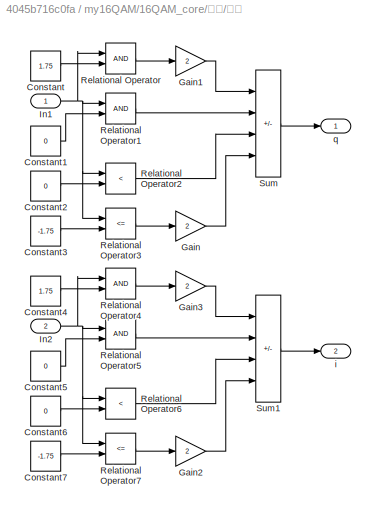
BLOCK [SubSystem] my16QAM/16QAM_core/解调/判决
  Ports = [2, 2]
  RequestExecContextInheritance = off
BLOCK [Constant] my16QAM/16QAM_core/解调/判决/Constant
  Value = 1.75
BLOCK [Constant] my16QAM/16QAM_core/解调/判决/Constant1
  Value = 0
BLOCK [Constant] my16QAM/16QAM_core/解调/判决/Constant2
  Value = 0
BLOCK [Constant] my16QAM/16QAM_core/解调/判决/Constant3
  Value = -1.75
BLOCK [Constant] my16QAM/16QAM_core/解调/判决/Constant4
  Value = 1.75
BLOCK [Constant] my16QAM/16QAM_core/解调/判决/Constant5
  Value = 0
BLOCK [Constant] my16QAM/16QAM_core/解调/判决/Constant6
  Value = 0
BLOCK [Constant] my16QAM/16QAM_core/解调/判决/Constant7
  Value = -1.75
BLOCK [Gain] my16QAM/16QAM_core/解调/判决/Gain
  Gain = 2
BLOCK [Gain] my16QAM/16QAM_core/解调/判决/Gain1
  Gain = 2
BLOCK [Gain] my16QAM/16QAM_core/解调/判决/Gain2
  Gain = 2
BLOCK [Gain] my16QAM/16QAM_core/解调/判决/Gain3
  Gain = 2
BLOCK [Inport] my16QAM/16QAM_core/解调/判决/In1
BLOCK [Inport] my16QAM/16QAM_core/解调/判决/In2
  Port = 2
BLOCK [RelationalOperator] my16QAM/16QAM_core/解调/判决/Relational Operator
  InputSameDT = off
  OutDataTypeStr = boolean
  Ports = [2, 1]
  RndMeth = Simplest
BLOCK [RelationalOperator] my16QAM/16QAM_core/解调/判决/Relational Operator1
  InputSameDT = off
  OutDataTypeStr = boolean
  Ports = [2, 1]
  RndMeth = Simplest
BLOCK [RelationalOperator] my16QAM/16QAM_core/解调/判决/Relational Operator2
  InputSameDT = off
  Operator = <
  OutDataTypeStr = boolean
  Ports = [2, 1]
  RndMeth = Simplest
BLOCK [RelationalOperator] my16QAM/16QAM_core/解调/判决/Relational Operator3
  InputSameDT = off
  Operator = <=
  OutDataTypeStr = boolean
  Ports = [2, 1]
  RndMeth = Simplest
BLOCK [RelationalOperator] my16QAM/16QAM_core/解调/判决/Relational Operator4
  InputSameDT = off
  OutDataTypeStr = boolean
  Ports = [2, 1]
  RndMeth = Simplest
BLOCK [RelationalOperator] my16QAM/16QAM_core/解调/判决/Relational Operator5
  InputSameDT = off
  OutDataTypeStr = boolean
  Ports = [2, 1]
  RndMeth = Simplest
BLOCK [RelationalOperator] my16QAM/16QAM_core/解调/判决/Relational Operator6
  InputSameDT = off
  Operator = <
  OutDataTypeStr = boolean
  Ports = [2, 1]
  RndMeth = Simplest
BLOCK [RelationalOperator] my16QAM/16QAM_core/解调/判决/Relational Operator7
  InputSameDT = off
  Operator = <=
  OutDataTypeStr = boolean
  Ports = [2, 1]
  RndMeth = Simplest
BLOCK [Sum] my16QAM/16QAM_core/解调/判决/Sum
  IconShape = rectangular
  Inputs = ++--
  Ports = [4, 1]
BLOCK [Sum] my16QAM/16QAM_core/解调/判决/Sum1
  IconShape = rectangular
  Inputs = ++--
  Ports = [4, 1]
BLOCK [Outport] my16QAM/16QAM_core/解调/判决/i
  Port = 2
BLOCK [Outport] my16QAM/16QAM_core/解调/判决/q
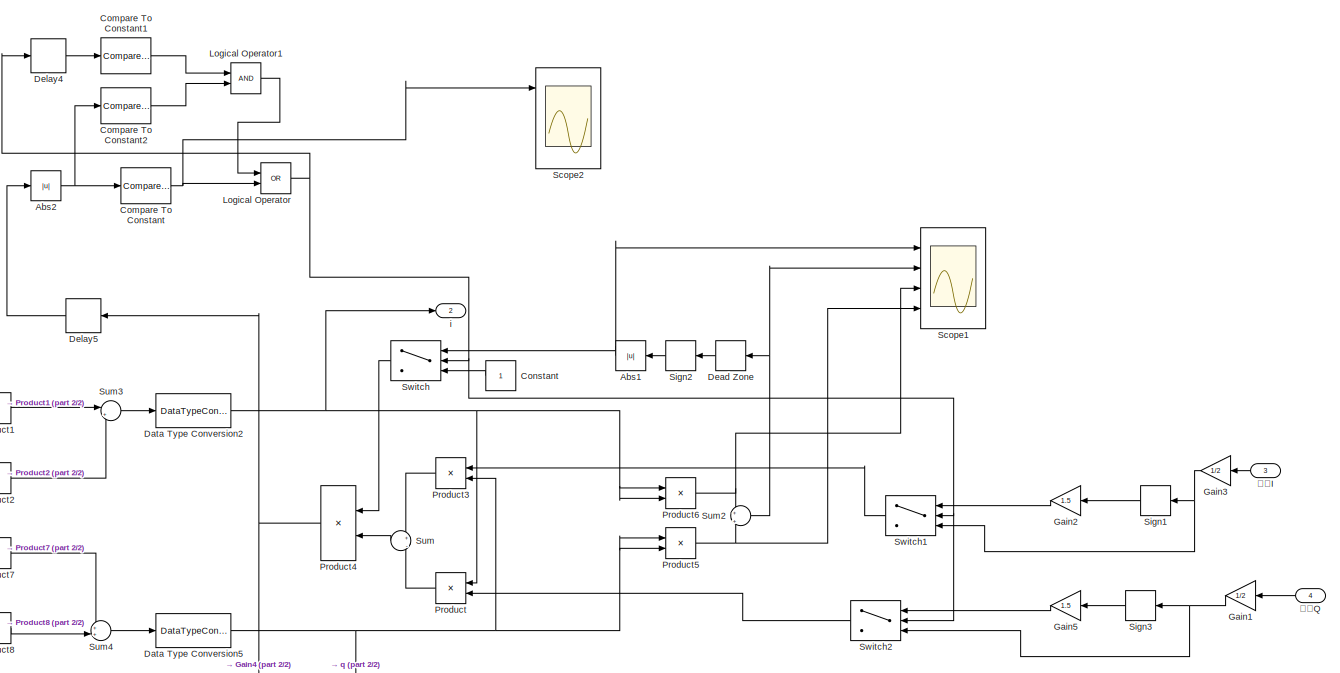
[diagram: my16QAM/16QAM_core/解调/载波同步1 - part 1/2, most of the canvas]
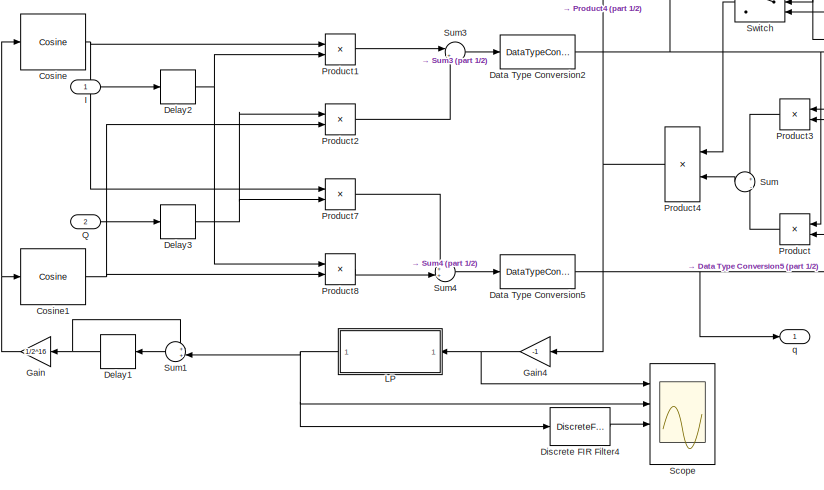
[diagram: my16QAM/16QAM_core/解调/载波同步1 - part 2/2, bottom left region]
BLOCK [SubSystem] my16QAM/16QAM_core/解调/载波同步1
  Ports = [4, 2]
  RequestExecContextInheritance = off
BLOCK [Abs] my16QAM/16QAM_core/解调/载波同步1/Abs1
  SaturateOnIntegerOverflow = off
BLOCK [Abs] my16QAM/16QAM_core/解调/载波同步1/Abs2
  SaturateOnIntegerOverflow = off
BLOCK [Reference] my16QAM/16QAM_core/解调/载波同步1/Compare To Constant  REF=simulink/Logic and Bit
Operations/Compare
To Constant
  Ports = [1, 1]
  SourceBlock = simulink/Logic and Bit\nOperations/Compare\nTo Constant
  SourceProductBaseCode = SL
  SourceType = Compare To Constant
BLOCK [Reference] my16QAM/16QAM_core/解调/载波同步1/Compare To Constant1  REF=simulink/Logic and Bit
Operations/Compare
To Constant
  Ports = [1, 1]
  SourceBlock = simulink/Logic and Bit\nOperations/Compare\nTo Constant
  SourceProductBaseCode = SL
  SourceType = Compare To Constant
BLOCK [Reference] my16QAM/16QAM_core/解调/载波同步1/Compare To Constant2  REF=simulink/Logic and Bit
Operations/Compare
To Constant
  Ports = [1, 1]
  SourceBlock = simulink/Logic and Bit\nOperations/Compare\nTo Constant
  SourceProductBaseCode = SL
  SourceType = Compare To Constant
BLOCK [Constant] my16QAM/16QAM_core/解调/载波同步1/Constant
  OutDataTypeStr = int32
  SampleTime = 0.01
BLOCK [Reference] my16QAM/16QAM_core/解调/载波同步1/Cosine  REF=simulink/Lookup
Tables/Cosine
  Ports = [1, 1]
  SourceBlock = simulink/Lookup\nTables/Cosine
  SourceProductBaseCode = SL
  SourceType = Sine and Cosine
BLOCK [Reference] my16QAM/16QAM_core/解调/载波同步1/Cosine1  REF=simulink/Lookup
Tables/Cosine
  Ports = [1, 1]
  SourceBlock = simulink/Lookup\nTables/Cosine
  SourceProductBaseCode = SL
  SourceType = Sine and Cosine
BLOCK [DataTypeConversion] my16QAM/16QAM_core/解调/载波同步1/Data Type Conversion2
  OutDataTypeStr = fixdt(1,32,28)
  RndMeth = Floor
  SaturateOnIntegerOverflow = off
BLOCK [DataTypeConversion] my16QAM/16QAM_core/解调/载波同步1/Data Type Conversion5
  OutDataTypeStr = fixdt(1,32,28)
  RndMeth = Floor
  SaturateOnIntegerOverflow = off
BLOCK [DeadZone] my16QAM/16QAM_core/解调/载波同步1/Dead Zone
  LowerValue = 3.5
  UpperValue = 4
BLOCK [Delay] my16QAM/16QAM_core/解调/载波同步1/Delay1
  DelayLength = 1
  InitialCondition = 0
  InputPortMap = u0
  Ports = [1, 1]
  SampleTime = 0.01
BLOCK [Delay] my16QAM/16QAM_core/解调/载波同步1/Delay2
  DelayLength = 1
  InitialCondition = 0
  InputPortMap = u0
  Ports = [1, 1]
  SampleTime = 0.01
BLOCK [Delay] my16QAM/16QAM_core/解调/载波同步1/Delay3
  DelayLength = 1
  InitialCondition = 0
  InputPortMap = u0
  Ports = [1, 1]
  SampleTime = 0.01
BLOCK [Delay] my16QAM/16QAM_core/解调/载波同步1/Delay4
  DelayLength = 1
  InitialCondition = 0
  InputPortMap = u0
  Ports = [1, 1]
  SampleTime = 0.01
BLOCK [Delay] my16QAM/16QAM_core/解调/载波同步1/Delay5
  DelayLength = 1
  InitialCondition = 0
  InputPortMap = u0
  Ports = [1, 1]
  SampleTime = 0.01
BLOCK [DiscreteFir] my16QAM/16QAM_core/解调/载波同步1/Discrete FIR Filter4
  Coefficients = [5.38827670327720e-05	8.37859864059126e-06	9.02577071280919e-06	9.70599515144445e-06	1.04165818557214e-05	1.11621497031896e-05	1.19399905979190e-05	1.27547662205456e-05	1.36038280216497e-05	1.44919424768979e-05	1.54165002359471e-05	1.63821647738810e-05	1.73863448370645e-05	1.84338552877666e-05	1.95220392829791e-05	2.06555805408248e-05	2.18322698177188e-05	2.30558422383026e-05	2.43269378472256e-05	...<+12509ch>
  InputPortMap = u0
  OutputPortMap = o0
  Ports = [1, 1]
BLOCK [Gain] my16QAM/16QAM_core/解调/载波同步1/Gain
  Gain = 1/2^16
BLOCK [Gain] my16QAM/16QAM_core/解调/载波同步1/Gain1
  Gain = 1/2
  OutDataTypeStr = fixdt(1,32,28)
BLOCK [Gain] my16QAM/16QAM_core/解调/载波同步1/Gain2
  Gain = 1.5
  OutDataTypeStr = fixdt(1,32,28)
BLOCK [Gain] my16QAM/16QAM_core/解调/载波同步1/Gain3
  Gain = 1/2
  OutDataTypeStr = fixdt(1,32,28)
BLOCK [Gain] my16QAM/16QAM_core/解调/载波同步1/Gain4
  Gain = -1
  OutDataTypeStr = fixdt(1,32,28)
BLOCK [Gain] my16QAM/16QAM_core/解调/载波同步1/Gain5
  Gain = 1.5
  OutDataTypeStr = fixdt(1,32,28)
BLOCK [Inport] my16QAM/16QAM_core/解调/载波同步1/I
BLOCK [SubSystem] my16QAM/16QAM_core/解调/载波同步1/LP
  Ports = [1, 1]
  RequestExecContextInheritance = off
BLOCK [Constant] my16QAM/16QAM_core/解调/载波同步1/LP/Constant
  VectorParams1D = off
BLOCK [Constant] my16QAM/16QAM_core/解调/载波同步1/LP/Constant2
  Value = 100
  VectorParams1D = off
BLOCK [Delay] my16QAM/16QAM_core/解调/载波同步1/LP/Delay
  DelayLength = 1
  InitialCondition = 0
  InputPortMap = u0
  Ports = [1, 1]
  SampleTime = 0.01
BLOCK [Inport] my16QAM/16QAM_core/解调/载波同步1/LP/In1
BLOCK [Outport] my16QAM/16QAM_core/解调/载波同步1/LP/Out1
BLOCK [Product] my16QAM/16QAM_core/解调/载波同步1/LP/Product1
  OutDataTypeStr = fixdt(1,32,15)
  Ports = [2, 1]
BLOCK [Product] my16QAM/16QAM_core/解调/载波同步1/LP/Product2
  OutDataTypeStr = fixdt(1,32,15)
  Ports = [2, 1]
BLOCK [Sum] my16QAM/16QAM_core/解调/载波同步1/LP/Sum
  Inputs = |++
  OutDataTypeStr = fixdt(1,32,15)
  Ports = [2, 1]
BLOCK [Sum] my16QAM/16QAM_core/解调/载波同步1/LP/Sum1
  Inputs = |++
  OutDataTypeStr = fixdt(1,32,15)
  Ports = [2, 1]
BLOCK [Logic] my16QAM/16QAM_core/解调/载波同步1/Logical Operator
  AllPortsSameDT = off
  Operator = OR
  OutDataTypeStr = boolean
  Ports = [2, 1]
BLOCK [Logic] my16QAM/16QAM_core/解调/载波同步1/Logical Operator1
  AllPortsSameDT = off
  OutDataTypeStr = boolean
  Ports = [2, 1]
BLOCK [Product] my16QAM/16QAM_core/解调/载波同步1/Product
  OutDataTypeStr = fixdt(1,32,28)
  Ports = [2, 1]
BLOCK [Product] my16QAM/16QAM_core/解调/载波同步1/Product1
  OutDataTypeStr = fixdt(1,32,28)
  Ports = [2, 1]
BLOCK [Product] my16QAM/16QAM_core/解调/载波同步1/Product2
  OutDataTypeStr = fixdt(1,32,28)
  Ports = [2, 1]
BLOCK [Product] my16QAM/16QAM_core/解调/载波同步1/Product3
  OutDataTypeStr = fixdt(1,32,28)
  Ports = [2, 1]
BLOCK [Product] my16QAM/16QAM_core/解调/载波同步1/Product4
  OutDataTypeStr = fixdt(1,32,28)
  Ports = [2, 1]
BLOCK [Product] my16QAM/16QAM_core/解调/载波同步1/Product5
  OutDataTypeStr = fixdt(1,32,28)
  Ports = [2, 1]
BLOCK [Product] my16QAM/16QAM_core/解调/载波同步1/Product6
  OutDataTypeStr = fixdt(1,32,28)
  Ports = [2, 1]
BLOCK [Product] my16QAM/16QAM_core/解调/载波同步1/Product7
  OutDataTypeStr = fixdt(1,32,28)
  Ports = [2, 1]
BLOCK [Product] my16QAM/16QAM_core/解调/载波同步1/Product8
  OutDataTypeStr = fixdt(1,32,28)
  Ports = [2, 1]
BLOCK [Inport] my16QAM/16QAM_core/解调/载波同步1/Q
  Port = 2
BLOCK [Scope] my16QAM/16QAM_core/解调/载波同步1/Scope
  Floating = off
  NumInputPorts = 4
  Ports = [4]
  ScopeSpecificationString = Simulink.scopes.TimeScopeBlockCfg('CurrentConfiguration', extmgr.ConfigurationSet(extmgr.Configuration('Core','General UI',true),extmgr.Configuration('Core','Source UI',true),extmgr.Configuration('Sources','WiredSimulink',true,'DataLoggingVariableName','ScopeData1'),extmgr.Configuration('Visuals','Time Domain',true,'SerializedDisplays',{struct('MinYLimReal','-5.59165','MaxYLimReal','4.38771','YLab...<+3450ch>
BLOCK [Scope] my16QAM/16QAM_core/解调/载波同步1/Scope1
  Floating = off
  NumInputPorts = 4
  Ports = [4]
  ScopeSpecificationString = Simulink.scopes.TimeScopeBlockCfg('CurrentConfiguration', extmgr.ConfigurationSet(extmgr.Configuration('Core','General UI',true),extmgr.Configuration('Core','Source UI',true),extmgr.Configuration('Sources','WiredSimulink',true,'DataLoggingVariableName','ScopeData2'),extmgr.Configuration('Visuals','Time Domain',true,'SerializedDisplays',{struct('MinYLimReal','-0.125','MaxYLimReal','1.125','YLabelRe...<+3714ch>
BLOCK [Scope] my16QAM/16QAM_core/解调/载波同步1/Scope2
  Floating = off
  NumInputPorts = 4
  Ports = [4]
  ScopeSpecificationString = Simulink.scopes.TimeScopeBlockCfg('CurrentConfiguration', extmgr.ConfigurationSet(extmgr.Configuration('Core','General UI',true),extmgr.Configuration('Core','Source UI',true),extmgr.Configuration('Sources','WiredSimulink',true,'DataLoggingVariableName','ScopeData2'),extmgr.Configuration('Visuals','Time Domain',true,'SerializedDisplays',{struct('MinYLimReal','-0.125','MaxYLimReal','1.125','YLabelRe...<+3736ch>
BLOCK [Signum] my16QAM/16QAM_core/解调/载波同步1/Sign1
BLOCK [Signum] my16QAM/16QAM_core/解调/载波同步1/Sign2
BLOCK [Signum] my16QAM/16QAM_core/解调/载波同步1/Sign3
BLOCK [Sum] my16QAM/16QAM_core/解调/载波同步1/Sum
  Inputs = +|-
  Ports = [2, 1]
BLOCK [Sum] my16QAM/16QAM_core/解调/载波同步1/Sum1
  Inputs = ++|
  OutDataTypeStr = fixdt(1,32,15)
  OutMax = [2^16-1]
  OutMin = [0]
  Ports = [2, 1]
BLOCK [Sum] my16QAM/16QAM_core/解调/载波同步1/Sum2
  Inputs = +|+
  Ports = [2, 1]
BLOCK [Sum] my16QAM/16QAM_core/解调/载波同步1/Sum3
  Inputs = |+-
  Ports = [2, 1]
BLOCK [Sum] my16QAM/16QAM_core/解调/载波同步1/Sum4
  Inputs = ++|
  Ports = [2, 1]
BLOCK [Switch] my16QAM/16QAM_core/解调/载波同步1/Switch
  Criteria = u2 ~= 0
  InputSameDT = off
  SaturateOnIntegerOverflow = off
BLOCK [Switch] my16QAM/16QAM_core/解调/载波同步1/Switch1
  Criteria = u2 > Threshold
  InputSameDT = off
  SaturateOnIntegerOverflow = off
BLOCK [Switch] my16QAM/16QAM_core/解调/载波同步1/Switch2
  Criteria = u2 > Threshold
  InputSameDT = off
  SaturateOnIntegerOverflow = off
BLOCK [Outport] my16QAM/16QAM_core/解调/载波同步1/i
  Port = 2
BLOCK [Outport] my16QAM/16QAM_core/解调/载波同步1/q
BLOCK [Inport] my16QAM/16QAM_core/解调/载波同步1/判决I
  Port = 3
BLOCK [Inport] my16QAM/16QAM_core/解调/载波同步1/判决Q
  Port = 4
BLOCK [Inport] my16QAM/In1
BLOCK [Inport] my16QAM/In2
  Port = 2
BLOCK [Outport] my16QAM/Out1
BLOCK [SubSystem] my16QAM/串转并
  Ports = [1, 1]
  RequestExecContextInheritance = off
BLOCK [Delay] my16QAM/串转并/Delay
  InitialCondition = 0
  InputPortMap = u0
  Ports = [1, 1]
  SampleTime = 0.01/4
BLOCK [Delay] my16QAM/串转并/Delay1
  DelayLength = 3
  InitialCondition = 0
  InputPortMap = u0
  Ports = [1, 1]
  SampleTime = 0.01/4
BLOCK [Delay] my16QAM/串转并/Delay2
  DelayLength = 4
  InitialCondition = 0
  InputPortMap = u0
  Ports = [1, 1]
  SampleTime = 0.01/4
BLOCK [Delay] my16QAM/串转并/Delay3
  DelayLength = 1
  InitialCondition = 0
  InputPortMap = u0
  Ports = [1, 1]
  SampleTime = 0.01
BLOCK [Delay] my16QAM/串转并/Delay4
  DelayLength = 1
  InitialCondition = 0
  InputPortMap = u0
  Ports = [1, 1]
  SampleTime = 0.01/4
BLOCK [Gain] my16QAM/串转并/Gain
  Gain = 2
BLOCK [Gain] my16QAM/串转并/Gain1
  Gain = 4
BLOCK [Gain] my16QAM/串转并/Gain2
  Gain = 8
BLOCK [Inport] my16QAM/串转并/In1
BLOCK [Outport] my16QAM/串转并/Out1
BLOCK [Sum] my16QAM/串转并/Sum
  IconShape = rectangular
  Inputs = ++++
  Ports = [4, 1]
BLOCK [SubSystem] my16QAM/并转串
  Ports = [1, 1]
  RequestExecContextInheritance = off
BLOCK [Reference] my16QAM/并转串/Counter Limited  REF=simulink/Sources/Counter
Limited
  Ports = [0, 1]
  SourceBlock = simulink/Sources/Counter\nLimited
  SourceProductBaseCode = SL
  SourceType = Counter Limited
BLOCK [DataTypeConversion] my16QAM/并转串/Data Type Conversion
  OutDataTypeStr = fixdt(0,4,0)
  RndMeth = Floor
  SaturateOnIntegerOverflow = off
BLOCK [Demux] my16QAM/并转串/Demux
  DisplayOption = none
  Ports = [1, 4]
BLOCK [Inport] my16QAM/并转串/In1
BLOCK [MultiPortSwitch] my16QAM/并转串/Index Vector
  DataPortOrder = Zero-based contiguous
  InputSameDT = off
  Inputs = 4
  Ports = [5, 1]
  SaturateOnIntegerOverflow = off
  zeroidx = on
BLOCK [Reference] my16QAM/并转串/Integer to Bit Converter  REF=commutil2/Integer to Bit
Converter
  Ports = [1, 1]
  SourceBlock = commutil2/Integer to Bit\nConverter
  SourceProductBaseCode = CM
  SourceType = Integer to Bit Converter
BLOCK [Outport] my16QAM/并转串/Out1
LINE Compare To Constant:1 -> Delay1:1
NET Data Type Conversion1:1 -> Scope:2, Sum:2, To Workspace:1
LINE Data Type Conversion:1 -> my16QAM:1
LINE Delay1:1 -> my16QAM:2
NET Delay:1 -> Scope:1, Sum:1
NET Signal From Workspace:1 -> Compare To Constant:1, Data Type Conversion:1, Delay:1
LINE Sum:1 -> Scope:3
LINE my16QAM/16QAM_core/AWGN Channel:1 -> my16QAM/16QAM_core/解调:1
NET my16QAM/16QAM_core/Data Type Conversion:1 -> my16QAM/16QAM_core/Product:1, my16QAM/16QAM_core/Product:2
NET my16QAM/16QAM_core/Delay:1 -> my16QAM/16QAM_core/Scope:1, my16QAM/16QAM_core/Sum:1
NET my16QAM/16QAM_core/In1:1 -> my16QAM/16QAM_core/Delay:1, my16QAM/16QAM_core/差分调制:1
LINE my16QAM/16QAM_core/In2:1 -> my16QAM/16QAM_core/Product1:2
LINE my16QAM/16QAM_core/Mean:1 -> my16QAM/16QAM_core/Scope1:1
LINE my16QAM/16QAM_core/Product1:1 -> my16QAM/16QAM_core/AWGN Channel:1
LINE my16QAM/16QAM_core/Product:1 -> my16QAM/16QAM_core/Mean:1
LINE my16QAM/16QAM_core/Sum:1 -> my16QAM/16QAM_core/Scope:3
NET my16QAM/16QAM_core/发射机/Complex to Real-Imag:1 -> my16QAM/16QAM_core/发射机/Product1:2, my16QAM/16QAM_core/发射机/Scope:2
NET my16QAM/16QAM_core/发射机/Complex to Real-Imag:2 -> my16QAM/16QAM_core/发射机/Product:1, my16QAM/16QAM_core/发射机/Scope:1
LINE my16QAM/16QAM_core/发射机/Constant:1 -> my16QAM/16QAM_core/发射机/Sum:1
LINE my16QAM/16QAM_core/发射机/Cosine1:1 -> my16QAM/16QAM_core/发射机/Product:2
LINE my16QAM/16QAM_core/发射机/Cosine1:2 -> my16QAM/16QAM_core/发射机/Product1:1
LINE my16QAM/16QAM_core/发射机/Data Type Conversion1:1 -> my16QAM/16QAM_core/发射机/Complex to Real-Imag:1
LINE my16QAM/16QAM_core/发射机/Data Type Conversion:1 -> my16QAM/16QAM_core/发射机/Out1:1
NET my16QAM/16QAM_core/发射机/Delay:1 -> my16QAM/16QAM_core/发射机/Gain:1, my16QAM/16QAM_core/发射机/Sum:2
LINE my16QAM/16QAM_core/发射机/Discrete FIR Filter2:1 -> my16QAM/16QAM_core/发射机/Data Type Conversion1:1
LINE my16QAM/16QAM_core/发射机/Gain2:1 -> my16QAM/16QAM_core/发射机/Upsample1:1
LINE my16QAM/16QAM_core/发射机/Gain:1 -> my16QAM/16QAM_core/发射机/Cosine1:1
LINE my16QAM/16QAM_core/发射机/In1:1 -> my16QAM/16QAM_core/发射机/Gain2:1
LINE my16QAM/16QAM_core/发射机/Product1:1 -> my16QAM/16QAM_core/发射机/Sum1:1
LINE my16QAM/16QAM_core/发射机/Product:1 -> my16QAM/16QAM_core/发射机/Sum1:2
NET my16QAM/16QAM_core/发射机/Sum1:1 -> my16QAM/16QAM_core/发射机/Data Type Conversion:1, my16QAM/16QAM_core/发射机/Scope2:2
LINE my16QAM/16QAM_core/发射机/Sum:1 -> my16QAM/16QAM_core/发射机/Delay:1
LINE my16QAM/16QAM_core/发射机/Upsample1:1 -> my16QAM/16QAM_core/发射机/Discrete FIR Filter2:1
NET my16QAM/16QAM_core/发射机:1 -> my16QAM/16QAM_core/Data Type Conversion:1, my16QAM/16QAM_core/Product1:1
LINE my16QAM/16QAM_core/差分解调/2-D Lookup Table1:1 -> my16QAM/16QAM_core/差分解调/Data Type Conversion1:1
LINE my16QAM/16QAM_core/差分解调/2-D Lookup Table:1 -> my16QAM/16QAM_core/差分解调/Data Type Conversion:1
LINE my16QAM/16QAM_core/差分解调/Complex to Real-Imag:1 -> my16QAM/16QAM_core/差分解调/2-D Lookup Table:1
LINE my16QAM/16QAM_core/差分解调/Complex to Real-Imag:2 -> my16QAM/16QAM_core/差分解调/2-D Lookup Table:2
LINE my16QAM/16QAM_core/差分解调/Data Type Conversion1:1 -> my16QAM/16QAM_core/差分解调/Delay1:1
NET my16QAM/16QAM_core/差分解调/Data Type Conversion2:1 -> my16QAM/16QAM_core/差分解调/2-D Lookup Table1:2, my16QAM/16QAM_core/差分解调/Sign1:1
NET my16QAM/16QAM_core/差分解调/Data Type Conversion3:1 -> my16QAM/16QAM_core/差分解调/2-D Lookup Table1:1, my16QAM/16QAM_core/差分解调/Sign:1
LINE my16QAM/16QAM_core/差分解调/Data Type Conversion:1 -> my16QAM/16QAM_core/差分解调/Gain:1
LINE my16QAM/16QAM_core/差分解调/Delay1:1 -> my16QAM/16QAM_core/差分解调/Sum:1
LINE my16QAM/16QAM_core/差分解调/Delay2:1 -> my16QAM/16QAM_core/差分解调/Data Type Conversion3:1
LINE my16QAM/16QAM_core/差分解调/Delay3:1 -> my16QAM/16QAM_core/差分解调/Data Type Conversion2:1
LINE my16QAM/16QAM_core/差分解调/Delay:1 -> my16QAM/16QAM_core/差分解调/Divide:2
LINE my16QAM/16QAM_core/差分解调/Divide:1 -> my16QAM/16QAM_core/差分解调/Complex to Real-Imag:1
LINE my16QAM/16QAM_core/差分解调/Gain:1 -> my16QAM/16QAM_core/差分解调/Sum:2
NET my16QAM/16QAM_core/差分解调/Real-Imag to Complex1:1 -> my16QAM/16QAM_core/差分解调/Delay:1, my16QAM/16QAM_core/差分解调/Divide:1
LINE my16QAM/16QAM_core/差分解调/Sign1:1 -> my16QAM/16QAM_core/差分解调/Real-Imag to Complex1:2
LINE my16QAM/16QAM_core/差分解调/Sign:1 -> my16QAM/16QAM_core/差分解调/Real-Imag to Complex1:1
LINE my16QAM/16QAM_core/差分解调/Sum:1 -> my16QAM/16QAM_core/差分解调/Out1:1
LINE my16QAM/16QAM_core/差分解调/i:1 -> my16QAM/16QAM_core/差分解调/Delay2:1
LINE my16QAM/16QAM_core/差分解调/q:1 -> my16QAM/16QAM_core/差分解调/Delay3:1
NET my16QAM/16QAM_core/差分解调:1 -> my16QAM/16QAM_core/Out1:1, my16QAM/16QAM_core/Scope:2, my16QAM/16QAM_core/Sum:2
LINE my16QAM/16QAM_core/差分调制/1-D Lookup Table1:1 -> my16QAM/16QAM_core/差分调制/Real-Imag to Complex:1
LINE my16QAM/16QAM_core/差分调制/1-D Lookup Table2:1 -> my16QAM/16QAM_core/差分调制/Real-Imag to Complex:2
LINE my16QAM/16QAM_core/差分调制/1-D Lookup Table3:1 -> my16QAM/16QAM_core/差分调制/Real-Imag to Complex1:2
LINE my16QAM/16QAM_core/差分调制/1-D Lookup Table:1 -> my16QAM/16QAM_core/差分调制/Real-Imag to Complex1:1
NET my16QAM/16QAM_core/差分调制/Data Type Conversion1:1 -> my16QAM/16QAM_core/差分调制/1-D Lookup Table1:1, my16QAM/16QAM_core/差分调制/1-D Lookup Table2:1
NET my16QAM/16QAM_core/差分调制/Data Type Conversion2:1 -> my16QAM/16QAM_core/差分调制/1-D Lookup Table3:1, my16QAM/16QAM_core/差分调制/1-D Lookup Table:1
NET my16QAM/16QAM_core/差分调制/Data Type Conversion:1 -> my16QAM/16QAM_core/差分调制/Extract Bits1:1, my16QAM/16QAM_core/差分调制/Extract Bits:1
NET my16QAM/16QAM_core/差分调制/Delay:1 -> my16QAM/16QAM_core/差分调制/Product1:1, my16QAM/16QAM_core/差分调制/Product:1
LINE my16QAM/16QAM_core/差分调制/Extract Bits1:1 -> my16QAM/16QAM_core/差分调制/Data Type Conversion2:1
LINE my16QAM/16QAM_core/差分调制/Extract Bits:1 -> my16QAM/16QAM_core/差分调制/Data Type Conversion1:1
LINE my16QAM/16QAM_core/差分调制/In1:1 -> my16QAM/16QAM_core/差分调制/Data Type Conversion:1
LINE my16QAM/16QAM_core/差分调制/Product1:1 -> my16QAM/16QAM_core/差分调制/Delay:1
LINE my16QAM/16QAM_core/差分调制/Product:1 -> my16QAM/16QAM_core/差分调制/Out1:1
LINE my16QAM/16QAM_core/差分调制/Real-Imag to Complex1:1 -> my16QAM/16QAM_core/差分调制/Product:2
LINE my16QAM/16QAM_core/差分调制/Real-Imag to Complex:1 -> my16QAM/16QAM_core/差分调制/Product1:2
LINE my16QAM/16QAM_core/差分调制:1 -> my16QAM/16QAM_core/发射机:1
LINE my16QAM/16QAM_core/解调/Abs1:1 -> my16QAM/16QAM_core/解调/Sum:2
LINE my16QAM/16QAM_core/解调/Abs:1 -> my16QAM/16QAM_core/解调/Sum:1
NET my16QAM/16QAM_core/解调/Compare To Constant:1 -> my16QAM/16QAM_core/解调/Switch1:2, my16QAM/16QAM_core/解调/Switch:2
NET my16QAM/16QAM_core/解调/Constant:1 -> my16QAM/16QAM_core/解调/Switch1:3, my16QAM/16QAM_core/解调/Switch:3
LINE my16QAM/16QAM_core/解调/DDC/Constant:1 -> my16QAM/16QAM_core/解调/DDC/Sum1:1
LINE my16QAM/16QAM_core/解调/DDC/Cosine1:1 -> my16QAM/16QAM_core/解调/DDC/Product2:2
LINE my16QAM/16QAM_core/解调/DDC/Cosine:1 -> my16QAM/16QAM_core/解调/DDC/Product1:1
NET my16QAM/16QAM_core/解调/DDC/Delay2:1 -> my16QAM/16QAM_core/解调/DDC/Gain:1, my16QAM/16QAM_core/解调/DDC/Sum1:2
LINE my16QAM/16QAM_core/解调/DDC/Discrete FIR Filter3:1 -> my16QAM/16QAM_core/解调/DDC/Gain2:1
LINE my16QAM/16QAM_core/解调/DDC/Discrete FIR Filter4:1 -> my16QAM/16QAM_core/解调/DDC/Gain1:1
LINE my16QAM/16QAM_core/解调/DDC/Gain1:1 -> my16QAM/16QAM_core/解调/DDC/i:1
LINE my16QAM/16QAM_core/解调/DDC/Gain2:1 -> my16QAM/16QAM_core/解调/DDC/q:1
NET my16QAM/16QAM_core/解调/DDC/Gain:1 -> my16QAM/16QAM_core/解调/DDC/Cosine1:1, my16QAM/16QAM_core/解调/DDC/Cosine:1
NET my16QAM/16QAM_core/解调/DDC/In1:1 -> my16QAM/16QAM_core/解调/DDC/Product1:2, my16QAM/16QAM_core/解调/DDC/Product2:1
LINE my16QAM/16QAM_core/解调/DDC/Product1:1 -> my16QAM/16QAM_core/解调/DDC/Discrete FIR Filter4:1
LINE my16QAM/16QAM_core/解调/DDC/Product2:1 -> my16QAM/16QAM_core/解调/DDC/Discrete FIR Filter3:1
LINE my16QAM/16QAM_core/解调/DDC/Sum1:1 -> my16QAM/16QAM_core/解调/DDC/Delay2:1
NET my16QAM/16QAM_core/解调/DDC:1 -> my16QAM/16QAM_core/解调/Scope3:1, my16QAM/16QAM_core/解调/位同步:1
LINE my16QAM/16QAM_core/解调/DDC:2 -> my16QAM/16QAM_core/解调/位同步:2
LINE my16QAM/16QAM_core/解调/Data Type Conversion4:1 -> my16QAM/16QAM_core/解调/Delay1:1
LINE my16QAM/16QAM_core/解调/Delay1:1 -> my16QAM/16QAM_core/解调/Gain1:1
LINE my16QAM/16QAM_core/解调/Gain1:1 -> my16QAM/16QAM_core/解调/DDC:1
NET my16QAM/16QAM_core/解调/Gain2:1 -> my16QAM/16QAM_core/解调/Abs:1, my16QAM/16QAM_core/解调/Real-Imag to Complex:1, my16QAM/16QAM_core/解调/判决:2
NET my16QAM/16QAM_core/解调/Gain3:1 -> my16QAM/16QAM_core/解调/Abs1:1, my16QAM/16QAM_core/解调/Real-Imag to Complex:2, my16QAM/16QAM_core/解调/Scope3:3, my16QAM/16QAM_core/解调/判决:1
LINE my16QAM/16QAM_core/解调/In1:1 -> my16QAM/16QAM_core/解调/Data Type Conversion4:1
LINE my16QAM/16QAM_core/解调/Real-Imag to Complex:1 -> my16QAM/16QAM_core/解调/Constellation Diagram:1
NET my16QAM/16QAM_core/解调/Sum:1 -> my16QAM/16QAM_core/解调/Compare To Constant:1, my16QAM/16QAM_core/解调/Scope3:4
LINE my16QAM/16QAM_core/解调/Switch1:1 -> my16QAM/16QAM_core/解调/i:1
LINE my16QAM/16QAM_core/解调/Switch:1 -> my16QAM/16QAM_core/解调/q:1
NET my16QAM/16QAM_core/解调/位同步/Constant1:1 -> my16QAM/16QAM_core/解调/位同步/Product:1, my16QAM/16QAM_core/解调/位同步/Relational Operator:1
LINE my16QAM/16QAM_core/解调/位同步/Delay3:1 -> my16QAM/16QAM_core/解调/位同步/Subsystem:enable
LINE my16QAM/16QAM_core/解调/位同步/Delay4:1 -> my16QAM/16QAM_core/解调/位同步/LP:enable
NET my16QAM/16QAM_core/解调/位同步/Delay5:1 -> my16QAM/16QAM_core/解调/位同步/Farrow1:1, my16QAM/16QAM_core/解调/位同步/Scope1:2
LINE my16QAM/16QAM_core/解调/位同步/Delay6:1 -> my16QAM/16QAM_core/解调/位同步/Farrow3:1
LINE my16QAM/16QAM_core/解调/位同步/Discrete FIR Filter4:1 -> my16QAM/16QAM_core/解调/位同步/Scope2:3
NET my16QAM/16QAM_core/解调/位同步/Farrow1/Delay1:1 -> my16QAM/16QAM_core/解调/位同步/Farrow1/Delay2:1, my16QAM/16QAM_core/解调/位同步/Farrow1/Sum5:3
LINE my16QAM/16QAM_core/解调/位同步/Farrow1/Delay2:1 -> my16QAM/16QAM_core/解调/位同步/Farrow1/Sum2:1
NET my16QAM/16QAM_core/解调/位同步/Farrow1/Delay3:1 -> my16QAM/16QAM_core/解调/位同步/Farrow1/Sum4:1, my16QAM/16QAM_core/解调/位同步/Farrow1/Sum8:1
NET my16QAM/16QAM_core/解调/位同步/Farrow1/Delay4:1 -> my16QAM/16QAM_core/解调/位同步/Farrow1/Delay3:1, my16QAM/16QAM_core/解调/位同步/Farrow1/Sum3:1, my16QAM/16QAM_core/解调/位同步/Farrow1/Sum6:1
NET my16QAM/16QAM_core/解调/位同步/Farrow1/Delay:1 -> my16QAM/16QAM_core/解调/位同步/Farrow1/Delay4:1, my16QAM/16QAM_core/解调/位同步/Farrow1/Sum5:1, my16QAM/16QAM_core/解调/位同步/Farrow1/Sum7:1
NET my16QAM/16QAM_core/解调/位同步/Farrow1/Gain:1 -> my16QAM/16QAM_core/解调/位同步/Farrow1/Delay:1, my16QAM/16QAM_core/解调/位同步/Farrow1/Sum5:2, my16QAM/16QAM_core/解调/位同步/Farrow1/Sum7:2
NET my16QAM/16QAM_core/解调/位同步/Farrow1/In3:1 -> my16QAM/16QAM_core/解调/位同步/Farrow1/Product1:2, my16QAM/16QAM_core/解调/位同步/Farrow1/Product:2
LINE my16QAM/16QAM_core/解调/位同步/Farrow1/Product1:1 -> my16QAM/16QAM_core/解调/位同步/Farrow1/Sum2:2
LINE my16QAM/16QAM_core/解调/位同步/Farrow1/Product:1 -> my16QAM/16QAM_core/解调/位同步/Farrow1/Sum1:2
LINE my16QAM/16QAM_core/解调/位同步/Farrow1/Sum1:1 -> my16QAM/16QAM_core/解调/位同步/Farrow1/Product1:1
LINE my16QAM/16QAM_core/解调/位同步/Farrow1/Sum2:1 -> my16QAM/16QAM_core/解调/位同步/Farrow1/Out1:1
LINE my16QAM/16QAM_core/解调/位同步/Farrow1/Sum3:1 -> my16QAM/16QAM_core/解调/位同步/Farrow1/Sum8:2
LINE my16QAM/16QAM_core/解调/位同步/Farrow1/Sum4:1 -> my16QAM/16QAM_core/解调/位同步/Farrow1/Product:1
LINE my16QAM/16QAM_core/解调/位同步/Farrow1/Sum5:1 -> my16QAM/16QAM_core/解调/位同步/Farrow1/Sum3:2
LINE my16QAM/16QAM_core/解调/位同步/Farrow1/Sum6:1 -> my16QAM/16QAM_core/解调/位同步/Farrow1/Sum4:2
LINE my16QAM/16QAM_core/解调/位同步/Farrow1/Sum7:1 -> my16QAM/16QAM_core/解调/位同步/Farrow1/Sum6:2
LINE my16QAM/16QAM_core/解调/位同步/Farrow1/Sum8:1 -> my16QAM/16QAM_core/解调/位同步/Farrow1/Sum1:1
NET my16QAM/16QAM_core/解调/位同步/Farrow1/i:1 -> my16QAM/16QAM_core/解调/位同步/Farrow1/Delay1:1, my16QAM/16QAM_core/解调/位同步/Farrow1/Gain:1
NET my16QAM/16QAM_core/解调/位同步/Farrow1:1 -> my16QAM/16QAM_core/解调/位同步/GARD1:1, my16QAM/16QAM_core/解调/位同步/Subsystem:1
NET my16QAM/16QAM_core/解调/位同步/Farrow3/Delay1:1 -> my16QAM/16QAM_core/解调/位同步/Farrow3/Delay2:1, my16QAM/16QAM_core/解调/位同步/Farrow3/Sum5:3
LINE my16QAM/16QAM_core/解调/位同步/Farrow3/Delay2:1 -> my16QAM/16QAM_core/解调/位同步/Farrow3/Sum2:1
NET my16QAM/16QAM_core/解调/位同步/Farrow3/Delay3:1 -> my16QAM/16QAM_core/解调/位同步/Farrow3/Sum4:1, my16QAM/16QAM_core/解调/位同步/Farrow3/Sum8:1
NET my16QAM/16QAM_core/解调/位同步/Farrow3/Delay4:1 -> my16QAM/16QAM_core/解调/位同步/Farrow3/Delay3:1, my16QAM/16QAM_core/解调/位同步/Farrow3/Sum3:1, my16QAM/16QAM_core/解调/位同步/Farrow3/Sum6:1
NET my16QAM/16QAM_core/解调/位同步/Farrow3/Delay:1 -> my16QAM/16QAM_core/解调/位同步/Farrow3/Delay4:1, my16QAM/16QAM_core/解调/位同步/Farrow3/Sum5:1, my16QAM/16QAM_core/解调/位同步/Farrow3/Sum7:1
NET my16QAM/16QAM_core/解调/位同步/Farrow3/Gain:1 -> my16QAM/16QAM_core/解调/位同步/Farrow3/Delay:1, my16QAM/16QAM_core/解调/位同步/Farrow3/Sum5:2, my16QAM/16QAM_core/解调/位同步/Farrow3/Sum7:2
NET my16QAM/16QAM_core/解调/位同步/Farrow3/In3:1 -> my16QAM/16QAM_core/解调/位同步/Farrow3/Product1:2, my16QAM/16QAM_core/解调/位同步/Farrow3/Product:2
LINE my16QAM/16QAM_core/解调/位同步/Farrow3/Product1:1 -> my16QAM/16QAM_core/解调/位同步/Farrow3/Sum2:2
LINE my16QAM/16QAM_core/解调/位同步/Farrow3/Product:1 -> my16QAM/16QAM_core/解调/位同步/Farrow3/Sum1:2
LINE my16QAM/16QAM_core/解调/位同步/Farrow3/Sum1:1 -> my16QAM/16QAM_core/解调/位同步/Farrow3/Product1:1
LINE my16QAM/16QAM_core/解调/位同步/Farrow3/Sum2:1 -> my16QAM/16QAM_core/解调/位同步/Farrow3/Out1:1
LINE my16QAM/16QAM_core/解调/位同步/Farrow3/Sum3:1 -> my16QAM/16QAM_core/解调/位同步/Farrow3/Sum8:2
LINE my16QAM/16QAM_core/解调/位同步/Farrow3/Sum4:1 -> my16QAM/16QAM_core/解调/位同步/Farrow3/Product:1
LINE my16QAM/16QAM_core/解调/位同步/Farrow3/Sum5:1 -> my16QAM/16QAM_core/解调/位同步/Farrow3/Sum3:2
LINE my16QAM/16QAM_core/解调/位同步/Farrow3/Sum6:1 -> my16QAM/16QAM_core/解调/位同步/Farrow3/Sum4:2
LINE my16QAM/16QAM_core/解调/位同步/Farrow3/Sum7:1 -> my16QAM/16QAM_core/解调/位同步/Farrow3/Sum6:2
LINE my16QAM/16QAM_core/解调/位同步/Farrow3/Sum8:1 -> my16QAM/16QAM_core/解调/位同步/Farrow3/Sum1:1
NET my16QAM/16QAM_core/解调/位同步/Farrow3/q:1 -> my16QAM/16QAM_core/解调/位同步/Farrow3/Delay1:1, my16QAM/16QAM_core/解调/位同步/Farrow3/Gain:1
NET my16QAM/16QAM_core/解调/位同步/Farrow3:1 -> my16QAM/16QAM_core/解调/位同步/GARD1:2, my16QAM/16QAM_core/解调/位同步/Subsystem:2
LINE my16QAM/16QAM_core/解调/位同步/GARD1/Delay1:1 -> my16QAM/16QAM_core/解调/位同步/GARD1/Sum4:1
NET my16QAM/16QAM_core/解调/位同步/GARD1/Delay3:1 -> my16QAM/16QAM_core/解调/位同步/GARD1/Sign:1, my16QAM/16QAM_core/解调/位同步/GARD1/Sum3:1
NET my16QAM/16QAM_core/解调/位同步/GARD1/Delay5:1 -> my16QAM/16QAM_core/解调/位同步/GARD1/Sign2:1, my16QAM/16QAM_core/解调/位同步/GARD1/Sum6:1
LINE my16QAM/16QAM_core/解调/位同步/GARD1/Delay6:1 -> my16QAM/16QAM_core/解调/位同步/GARD1/Sum1:1
LINE my16QAM/16QAM_core/解调/位同步/GARD1/Gain1:1 -> my16QAM/16QAM_core/解调/位同步/GARD1/Sum1:2
LINE my16QAM/16QAM_core/解调/位同步/GARD1/Gain:1 -> my16QAM/16QAM_core/解调/位同步/GARD1/Sum4:2
NET my16QAM/16QAM_core/解调/位同步/GARD1/In1:1 -> my16QAM/16QAM_core/解调/位同步/GARD1/Delay1:1, my16QAM/16QAM_core/解调/位同步/GARD1/Delay3:1, my16QAM/16QAM_core/解调/位同步/GARD1/Sign1:1, my16QAM/16QAM_core/解调/位同步/GARD1/Sum3:2
NET my16QAM/16QAM_core/解调/位同步/GARD1/In2:1 -> my16QAM/16QAM_core/解调/位同步/GARD1/Delay5:1, my16QAM/16QAM_core/解调/位同步/GARD1/Delay6:1, my16QAM/16QAM_core/解调/位同步/GARD1/Sign3:1, my16QAM/16QAM_core/解调/位同步/GARD1/Sum6:2
LINE my16QAM/16QAM_core/解调/位同步/GARD1/Product1:1 -> my16QAM/16QAM_core/解调/位同步/GARD1/Sum2:1
LINE my16QAM/16QAM_core/解调/位同步/GARD1/Product:1 -> my16QAM/16QAM_core/解调/位同步/GARD1/Sum2:2
LINE my16QAM/16QAM_core/解调/位同步/GARD1/Sign1:1 -> my16QAM/16QAM_core/解调/位同步/GARD1/Sum5:1
LINE my16QAM/16QAM_core/解调/位同步/GARD1/Sign2:1 -> my16QAM/16QAM_core/解调/位同步/GARD1/Sum8:2
LINE my16QAM/16QAM_core/解调/位同步/GARD1/Sign3:1 -> my16QAM/16QAM_core/解调/位同步/GARD1/Sum8:1
LINE my16QAM/16QAM_core/解调/位同步/GARD1/Sign:1 -> my16QAM/16QAM_core/解调/位同步/GARD1/Sum5:2
LINE my16QAM/16QAM_core/解调/位同步/GARD1/Sum1:1 -> my16QAM/16QAM_core/解调/位同步/GARD1/Product:1
LINE my16QAM/16QAM_core/解调/位同步/GARD1/Sum2:1 -> my16QAM/16QAM_core/解调/位同步/GARD1/Out1:1
LINE my16QAM/16QAM_core/解调/位同步/GARD1/Sum3:1 -> my16QAM/16QAM_core/解调/位同步/GARD1/Gain:1
LINE my16QAM/16QAM_core/解调/位同步/GARD1/Sum4:1 -> my16QAM/16QAM_core/解调/位同步/GARD1/Product1:1
NET my16QAM/16QAM_core/解调/位同步/GARD1/Sum5:1 -> my16QAM/16QAM_core/解调/位同步/GARD1/Product1:2, my16QAM/16QAM_core/解调/位同步/GARD1/Scope2:1
LINE my16QAM/16QAM_core/解调/位同步/GARD1/Sum6:1 -> my16QAM/16QAM_core/解调/位同步/GARD1/Gain1:1
LINE my16QAM/16QAM_core/解调/位同步/GARD1/Sum8:1 -> my16QAM/16QAM_core/解调/位同步/GARD1/Product:2
NET my16QAM/16QAM_core/解调/位同步/GARD1:1 -> my16QAM/16QAM_core/解调/位同步/LP:1, my16QAM/16QAM_core/解调/位同步/Scope2:1
LINE my16QAM/16QAM_core/解调/位同步/LP/Constant2:1 -> my16QAM/16QAM_core/解调/位同步/LP/Product2:1
LINE my16QAM/16QAM_core/解调/位同步/LP/Constant:1 -> my16QAM/16QAM_core/解调/位同步/LP/Product1:2
NET my16QAM/16QAM_core/解调/位同步/LP/Delay:1 -> my16QAM/16QAM_core/解调/位同步/LP/Sum1:2, my16QAM/16QAM_core/解调/位同步/LP/Sum:2
NET my16QAM/16QAM_core/解调/位同步/LP/In1:1 -> my16QAM/16QAM_core/解调/位同步/LP/Product1:1, my16QAM/16QAM_core/解调/位同步/LP/Product2:2
LINE my16QAM/16QAM_core/解调/位同步/LP/Product1:1 -> my16QAM/16QAM_core/解调/位同步/LP/Sum1:1
LINE my16QAM/16QAM_core/解调/位同步/LP/Product2:1 -> my16QAM/16QAM_core/解调/位同步/LP/Sum:1
LINE my16QAM/16QAM_core/解调/位同步/LP/Sum1:1 -> my16QAM/16QAM_core/解调/位同步/LP/Delay:1
LINE my16QAM/16QAM_core/解调/位同步/LP/Sum:1 -> my16QAM/16QAM_core/解调/位同步/LP/Out1:1
NET my16QAM/16QAM_core/解调/位同步/LP:1 -> my16QAM/16QAM_core/解调/位同步/Discrete FIR Filter4:1, my16QAM/16QAM_core/解调/位同步/Scope2:2, my16QAM/16QAM_core/解调/位同步/specialNCO:1
LINE my16QAM/16QAM_core/解调/位同步/Product:1 -> my16QAM/16QAM_core/解调/位同步/Sum:1
LINE my16QAM/16QAM_core/解调/位同步/Relational Operator:1 -> my16QAM/16QAM_core/解调/位同步/Product:2
LINE my16QAM/16QAM_core/解调/位同步/Subsystem/In1:1 -> my16QAM/16QAM_core/解调/位同步/Subsystem/Out1:1
LINE my16QAM/16QAM_core/解调/位同步/Subsystem/In2:1 -> my16QAM/16QAM_core/解调/位同步/Subsystem/Out2:1
LINE my16QAM/16QAM_core/解调/位同步/Subsystem1/In1:1 -> my16QAM/16QAM_core/解调/位同步/Subsystem1/Out1:1
NET my16QAM/16QAM_core/解调/位同步/Subsystem1:1 -> my16QAM/16QAM_core/解调/位同步/Relational Operator:2, my16QAM/16QAM_core/解调/位同步/Sum:2
NET my16QAM/16QAM_core/解调/位同步/Subsystem:1 -> my16QAM/16QAM_core/解调/位同步/I:1, my16QAM/16QAM_core/解调/位同步/Scope1:1
LINE my16QAM/16QAM_core/解调/位同步/Subsystem:2 -> my16QAM/16QAM_core/解调/位同步/Q:1
NET my16QAM/16QAM_core/解调/位同步/Sum:1 -> my16QAM/16QAM_core/解调/位同步/Farrow1:2, my16QAM/16QAM_core/解调/位同步/Farrow3:2, my16QAM/16QAM_core/解调/位同步/Scope1:3
LINE my16QAM/16QAM_core/解调/位同步/i:1 -> my16QAM/16QAM_core/解调/位同步/Delay5:1
LINE my16QAM/16QAM_core/解调/位同步/q:1 -> my16QAM/16QAM_core/解调/位同步/Delay6:1
LINE my16QAM/16QAM_core/解调/位同步/specialNCO/Compare To Zero:1 -> my16QAM/16QAM_core/解调/位同步/specialNCO/Product:1
LINE my16QAM/16QAM_core/解调/位同步/specialNCO/Constant1:1 -> my16QAM/16QAM_core/解调/位同步/specialNCO/Product:2
LINE my16QAM/16QAM_core/解调/位同步/specialNCO/Constant:1 -> my16QAM/16QAM_core/解调/位同步/specialNCO/Sum1:3
NET my16QAM/16QAM_core/解调/位同步/specialNCO/Data Type Conversion1:1 -> my16QAM/16QAM_core/解调/位同步/specialNCO/Delay2:1, my16QAM/16QAM_core/解调/位同步/specialNCO/Sum:1
NET my16QAM/16QAM_core/解调/位同步/specialNCO/Delay1:1 -> my16QAM/16QAM_core/解调/位同步/specialNCO/Gain2:1, my16QAM/16QAM_core/解调/位同步/specialNCO/Sum1:1
NET my16QAM/16QAM_core/解调/位同步/specialNCO/Delay2:1 -> my16QAM/16QAM_core/解调/位同步/specialNCO/Gain3:1, my16QAM/16QAM_core/解调/位同步/specialNCO/Sum:2
LINE my16QAM/16QAM_core/解调/位同步/specialNCO/Gain2:1 -> my16QAM/16QAM_core/解调/位同步/specialNCO/Data Type Conversion1:1
LINE my16QAM/16QAM_core/解调/位同步/specialNCO/Gain3:1 -> my16QAM/16QAM_core/解调/位同步/specialNCO/u:1
LINE my16QAM/16QAM_core/解调/位同步/specialNCO/In1:1 -> my16QAM/16QAM_core/解调/位同步/specialNCO/Sum1:2
LINE my16QAM/16QAM_core/解调/位同步/specialNCO/Product:1 -> my16QAM/16QAM_core/解调/位同步/specialNCO/Sum2:2
LINE my16QAM/16QAM_core/解调/位同步/specialNCO/Sign1:1 -> my16QAM/16QAM_core/解调/位同步/specialNCO/clk:1
NET my16QAM/16QAM_core/解调/位同步/specialNCO/Sum1:1 -> my16QAM/16QAM_core/解调/位同步/specialNCO/Compare To Zero:1, my16QAM/16QAM_core/解调/位同步/specialNCO/Sum2:1
LINE my16QAM/16QAM_core/解调/位同步/specialNCO/Sum2:1 -> my16QAM/16QAM_core/解调/位同步/specialNCO/Delay1:1
LINE my16QAM/16QAM_core/解调/位同步/specialNCO/Sum:1 -> my16QAM/16QAM_core/解调/位同步/specialNCO/Sign1:1
NET my16QAM/16QAM_core/解调/位同步/specialNCO:1 -> my16QAM/16QAM_core/解调/位同步/Delay3:1, my16QAM/16QAM_core/解调/位同步/Delay4:1, my16QAM/16QAM_core/解调/位同步/Subsystem1:enable
LINE my16QAM/16QAM_core/解调/位同步/specialNCO:2 -> my16QAM/16QAM_core/解调/位同步/Subsystem1:1
NET my16QAM/16QAM_core/解调/位同步:1 -> my16QAM/16QAM_core/解调/Scope3:2, my16QAM/16QAM_core/解调/载波同步1:1
LINE my16QAM/16QAM_core/解调/位同步:2 -> my16QAM/16QAM_core/解调/载波同步1:2
LINE my16QAM/16QAM_core/解调/判决/Constant1:1 -> my16QAM/16QAM_core/解调/判决/Relational Operator1:2
LINE my16QAM/16QAM_core/解调/判决/Constant2:1 -> my16QAM/16QAM_core/解调/判决/Relational Operator2:2
LINE my16QAM/16QAM_core/解调/判决/Constant3:1 -> my16QAM/16QAM_core/解调/判决/Relational Operator3:2
LINE my16QAM/16QAM_core/解调/判决/Constant4:1 -> my16QAM/16QAM_core/解调/判决/Relational Operator4:2
LINE my16QAM/16QAM_core/解调/判决/Constant5:1 -> my16QAM/16QAM_core/解调/判决/Relational Operator5:2
LINE my16QAM/16QAM_core/解调/判决/Constant6:1 -> my16QAM/16QAM_core/解调/判决/Relational Operator6:2
LINE my16QAM/16QAM_core/解调/判决/Constant7:1 -> my16QAM/16QAM_core/解调/判决/Relational Operator7:2
LINE my16QAM/16QAM_core/解调/判决/Constant:1 -> my16QAM/16QAM_core/解调/判决/Relational Operator:2
LINE my16QAM/16QAM_core/解调/判决/Gain1:1 -> my16QAM/16QAM_core/解调/判决/Sum:1
LINE my16QAM/16QAM_core/解调/判决/Gain2:1 -> my16QAM/16QAM_core/解调/判决/Sum1:4
LINE my16QAM/16QAM_core/解调/判决/Gain3:1 -> my16QAM/16QAM_core/解调/判决/Sum1:1
LINE my16QAM/16QAM_core/解调/判决/Gain:1 -> my16QAM/16QAM_core/解调/判决/Sum:4
NET my16QAM/16QAM_core/解调/判决/In1:1 -> my16QAM/16QAM_core/解调/判决/Relational Operator1:1, my16QAM/16QAM_core/解调/判决/Relational Operator2:1, my16QAM/16QAM_core/解调/判决/Relational Operator3:1, my16QAM/16QAM_core/解调/判决/Relational Operator:1
NET my16QAM/16QAM_core/解调/判决/In2:1 -> my16QAM/16QAM_core/解调/判决/Relational Operator4:1, my16QAM/16QAM_core/解调/判决/Relational Operator5:1, my16QAM/16QAM_core/解调/判决/Relational Operator6:1, my16QAM/16QAM_core/解调/判决/Relational Operator7:1
LINE my16QAM/16QAM_core/解调/判决/Relational Operator1:1 -> my16QAM/16QAM_core/解调/判决/Sum:2
LINE my16QAM/16QAM_core/解调/判决/Relational Operator2:1 -> my16QAM/16QAM_core/解调/判决/Sum:3
LINE my16QAM/16QAM_core/解调/判决/Relational Operator3:1 -> my16QAM/16QAM_core/解调/判决/Gain:1
LINE my16QAM/16QAM_core/解调/判决/Relational Operator4:1 -> my16QAM/16QAM_core/解调/判决/Gain3:1
LINE my16QAM/16QAM_core/解调/判决/Relational Operator5:1 -> my16QAM/16QAM_core/解调/判决/Sum1:2
LINE my16QAM/16QAM_core/解调/判决/Relational Operator6:1 -> my16QAM/16QAM_core/解调/判决/Sum1:3
LINE my16QAM/16QAM_core/解调/判决/Relational Operator7:1 -> my16QAM/16QAM_core/解调/判决/Gain2:1
LINE my16QAM/16QAM_core/解调/判决/Relational Operator:1 -> my16QAM/16QAM_core/解调/判决/Gain1:1
LINE my16QAM/16QAM_core/解调/判决/Sum1:1 -> my16QAM/16QAM_core/解调/判决/i:1
LINE my16QAM/16QAM_core/解调/判决/Sum:1 -> my16QAM/16QAM_core/解调/判决/q:1
NET my16QAM/16QAM_core/解调/判决:1 -> my16QAM/16QAM_core/解调/Switch:1, my16QAM/16QAM_core/解调/载波同步1:4
NET my16QAM/16QAM_core/解调/判决:2 -> my16QAM/16QAM_core/解调/Switch1:1, my16QAM/16QAM_core/解调/载波同步1:3
NET my16QAM/16QAM_core/解调/载波同步1/Abs1:1 -> my16QAM/16QAM_core/解调/载波同步1/Scope1:1, my16QAM/16QAM_core/解调/载波同步1/Switch:1
NET my16QAM/16QAM_core/解调/载波同步1/Abs2:1 -> my16QAM/16QAM_core/解调/载波同步1/Compare To Constant2:1, my16QAM/16QAM_core/解调/载波同步1/Compare To Constant:1
LINE my16QAM/16QAM_core/解调/载波同步1/Compare To Constant1:1 -> my16QAM/16QAM_core/解调/载波同步1/Logical Operator1:1
LINE my16QAM/16QAM_core/解调/载波同步1/Compare To Constant2:1 -> my16QAM/16QAM_core/解调/载波同步1/Logical Operator1:2
NET my16QAM/16QAM_core/解调/载波同步1/Compare To Constant:1 -> my16QAM/16QAM_core/解调/载波同步1/Logical Operator:2, my16QAM/16QAM_core/解调/载波同步1/Scope2:1
LINE my16QAM/16QAM_core/解调/载波同步1/Constant:1 -> my16QAM/16QAM_core/解调/载波同步1/Switch:3
NET my16QAM/16QAM_core/解调/载波同步1/Cosine1:1 -> my16QAM/16QAM_core/解调/载波同步1/Product2:2, my16QAM/16QAM_core/解调/载波同步1/Product8:2
NET my16QAM/16QAM_core/解调/载波同步1/Cosine:1 -> my16QAM/16QAM_core/解调/载波同步1/Product1:1, my16QAM/16QAM_core/解调/载波同步1/Product7:1
NET my16QAM/16QAM_core/解调/载波同步1/Data Type Conversion2:1 -> my16QAM/16QAM_core/解调/载波同步1/Product6:1, my16QAM/16QAM_core/解调/载波同步1/Product6:2, my16QAM/16QAM_core/解调/载波同步1/Product:1, my16QAM/16QAM_core/解调/载波同步1/i:1
NET my16QAM/16QAM_core/解调/载波同步1/Data Type Conversion5:1 -> my16QAM/16QAM_core/解调/载波同步1/Product3:2, my16QAM/16QAM_core/解调/载波同步1/Product5:1, my16QAM/16QAM_core/解调/载波同步1/Product5:2, my16QAM/16QAM_core/解调/载波同步1/q:1
LINE my16QAM/16QAM_core/解调/载波同步1/Dead Zone:1 -> my16QAM/16QAM_core/解调/载波同步1/Sign2:1
NET my16QAM/16QAM_core/解调/载波同步1/Delay1:1 -> my16QAM/16QAM_core/解调/载波同步1/Gain:1, my16QAM/16QAM_core/解调/载波同步1/Sum1:1
NET my16QAM/16QAM_core/解调/载波同步1/Delay2:1 -> my16QAM/16QAM_core/解调/载波同步1/Product1:2, my16QAM/16QAM_core/解调/载波同步1/Product8:1
NET my16QAM/16QAM_core/解调/载波同步1/Delay3:1 -> my16QAM/16QAM_core/解调/载波同步1/Product2:1, my16QAM/16QAM_core/解调/载波同步1/Product7:2
LINE my16QAM/16QAM_core/解调/载波同步1/Delay4:1 -> my16QAM/16QAM_core/解调/载波同步1/Compare To Constant1:1
LINE my16QAM/16QAM_core/解调/载波同步1/Delay5:1 -> my16QAM/16QAM_core/解调/载波同步1/Abs2:1
LINE my16QAM/16QAM_core/解调/载波同步1/Discrete FIR Filter4:1 -> my16QAM/16QAM_core/解调/载波同步1/Scope:3
NET my16QAM/16QAM_core/解调/载波同步1/Gain1:1 -> my16QAM/16QAM_core/解调/载波同步1/Sign3:1, my16QAM/16QAM_core/解调/载波同步1/Switch2:3
LINE my16QAM/16QAM_core/解调/载波同步1/Gain2:1 -> my16QAM/16QAM_core/解调/载波同步1/Switch1:1
NET my16QAM/16QAM_core/解调/载波同步1/Gain3:1 -> my16QAM/16QAM_core/解调/载波同步1/Sign1:1, my16QAM/16QAM_core/解调/载波同步1/Switch1:3
NET my16QAM/16QAM_core/解调/载波同步1/Gain4:1 -> my16QAM/16QAM_core/解调/载波同步1/LP:1, my16QAM/16QAM_core/解调/载波同步1/Scope:1
LINE my16QAM/16QAM_core/解调/载波同步1/Gain5:1 -> my16QAM/16QAM_core/解调/载波同步1/Switch2:1
NET my16QAM/16QAM_core/解调/载波同步1/Gain:1 -> my16QAM/16QAM_core/解调/载波同步1/Cosine1:1, my16QAM/16QAM_core/解调/载波同步1/Cosine:1
LINE my16QAM/16QAM_core/解调/载波同步1/I:1 -> my16QAM/16QAM_core/解调/载波同步1/Delay2:1
LINE my16QAM/16QAM_core/解调/载波同步1/LP/Constant2:1 -> my16QAM/16QAM_core/解调/载波同步1/LP/Product2:1
LINE my16QAM/16QAM_core/解调/载波同步1/LP/Constant:1 -> my16QAM/16QAM_core/解调/载波同步1/LP/Product1:2
NET my16QAM/16QAM_core/解调/载波同步1/LP/Delay:1 -> my16QAM/16QAM_core/解调/载波同步1/LP/Sum1:2, my16QAM/16QAM_core/解调/载波同步1/LP/Sum:2
NET my16QAM/16QAM_core/解调/载波同步1/LP/In1:1 -> my16QAM/16QAM_core/解调/载波同步1/LP/Product1:1, my16QAM/16QAM_core/解调/载波同步1/LP/Product2:2
LINE my16QAM/16QAM_core/解调/载波同步1/LP/Product1:1 -> my16QAM/16QAM_core/解调/载波同步1/LP/Sum1:1
LINE my16QAM/16QAM_core/解调/载波同步1/LP/Product2:1 -> my16QAM/16QAM_core/解调/载波同步1/LP/Sum:1
LINE my16QAM/16QAM_core/解调/载波同步1/LP/Sum1:1 -> my16QAM/16QAM_core/解调/载波同步1/LP/Delay:1
LINE my16QAM/16QAM_core/解调/载波同步1/LP/Sum:1 -> my16QAM/16QAM_core/解调/载波同步1/LP/Out1:1
NET my16QAM/16QAM_core/解调/载波同步1/LP:1 -> my16QAM/16QAM_core/解调/载波同步1/Discrete FIR Filter4:1, my16QAM/16QAM_core/解调/载波同步1/Scope:2, my16QAM/16QAM_core/解调/载波同步1/Sum1:2
LINE my16QAM/16QAM_core/解调/载波同步1/Logical Operator1:1 -> my16QAM/16QAM_core/解调/载波同步1/Logical Operator:1
NET my16QAM/16QAM_core/解调/载波同步1/Logical Operator:1 -> my16QAM/16QAM_core/解调/载波同步1/Delay4:1, my16QAM/16QAM_core/解调/载波同步1/Switch1:2, my16QAM/16QAM_core/解调/载波同步1/Switch2:2, my16QAM/16QAM_core/解调/载波同步1/Switch:2
LINE my16QAM/16QAM_core/解调/载波同步1/Product1:1 -> my16QAM/16QAM_core/解调/载波同步1/Sum3:1
LINE my16QAM/16QAM_core/解调/载波同步1/Product2:1 -> my16QAM/16QAM_core/解调/载波同步1/Sum3:2
LINE my16QAM/16QAM_core/解调/载波同步1/Product3:1 -> my16QAM/16QAM_core/解调/载波同步1/Sum:1
NET my16QAM/16QAM_core/解调/载波同步1/Product4:1 -> my16QAM/16QAM_core/解调/载波同步1/Delay5:1, my16QAM/16QAM_core/解调/载波同步1/Gain4:1
NET my16QAM/16QAM_core/解调/载波同步1/Product5:1 -> my16QAM/16QAM_core/解调/载波同步1/Scope1:4, my16QAM/16QAM_core/解调/载波同步1/Sum2:2
NET my16QAM/16QAM_core/解调/载波同步1/Product6:1 -> my16QAM/16QAM_core/解调/载波同步1/Scope1:3, my16QAM/16QAM_core/解调/载波同步1/Sum2:1
LINE my16QAM/16QAM_core/解调/载波同步1/Product7:1 -> my16QAM/16QAM_core/解调/载波同步1/Sum4:1
LINE my16QAM/16QAM_core/解调/载波同步1/Product8:1 -> my16QAM/16QAM_core/解调/载波同步1/Sum4:2
LINE my16QAM/16QAM_core/解调/载波同步1/Product:1 -> my16QAM/16QAM_core/解调/载波同步1/Sum:2
LINE my16QAM/16QAM_core/解调/载波同步1/Q:1 -> my16QAM/16QAM_core/解调/载波同步1/Delay3:1
LINE my16QAM/16QAM_core/解调/载波同步1/Sign1:1 -> my16QAM/16QAM_core/解调/载波同步1/Gain2:1
LINE my16QAM/16QAM_core/解调/载波同步1/Sign2:1 -> my16QAM/16QAM_core/解调/载波同步1/Abs1:1
LINE my16QAM/16QAM_core/解调/载波同步1/Sign3:1 -> my16QAM/16QAM_core/解调/载波同步1/Gain5:1
LINE my16QAM/16QAM_core/解调/载波同步1/Sum1:1 -> my16QAM/16QAM_core/解调/载波同步1/Delay1:1
NET my16QAM/16QAM_core/解调/载波同步1/Sum2:1 -> my16QAM/16QAM_core/解调/载波同步1/Dead Zone:1, my16QAM/16QAM_core/解调/载波同步1/Scope1:2
LINE my16QAM/16QAM_core/解调/载波同步1/Sum3:1 -> my16QAM/16QAM_core/解调/载波同步1/Data Type Conversion2:1
LINE my16QAM/16QAM_core/解调/载波同步1/Sum4:1 -> my16QAM/16QAM_core/解调/载波同步1/Data Type Conversion5:1
LINE my16QAM/16QAM_core/解调/载波同步1/Sum:1 -> my16QAM/16QAM_core/解调/载波同步1/Product4:2
LINE my16QAM/16QAM_core/解调/载波同步1/Switch1:1 -> my16QAM/16QAM_core/解调/载波同步1/Product3:1
LINE my16QAM/16QAM_core/解调/载波同步1/Switch2:1 -> my16QAM/16QAM_core/解调/载波同步1/Product:2
LINE my16QAM/16QAM_core/解调/载波同步1/Switch:1 -> my16QAM/16QAM_core/解调/载波同步1/Product4:1
LINE my16QAM/16QAM_core/解调/载波同步1/判决I:1 -> my16QAM/16QAM_core/解调/载波同步1/Gain3:1
LINE my16QAM/16QAM_core/解调/载波同步1/判决Q:1 -> my16QAM/16QAM_core/解调/载波同步1/Gain1:1
LINE my16QAM/16QAM_core/解调/载波同步1:1 -> my16QAM/16QAM_core/解调/Gain3:1
LINE my16QAM/16QAM_core/解调/载波同步1:2 -> my16QAM/16QAM_core/解调/Gain2:1
LINE my16QAM/16QAM_core/解调:1 -> my16QAM/16QAM_core/差分解调:1
LINE my16QAM/16QAM_core/解调:2 -> my16QAM/16QAM_core/差分解调:2
LINE my16QAM/16QAM_core:1 -> my16QAM/并转串:1
LINE my16QAM/In1:1 -> my16QAM/串转并:1
LINE my16QAM/In2:1 -> my16QAM/16QAM_core:2
LINE my16QAM/串转并/Delay1:1 -> my16QAM/串转并/Gain1:1
LINE my16QAM/串转并/Delay2:1 -> my16QAM/串转并/Gain2:1
LINE my16QAM/串转并/Delay3:1 -> my16QAM/串转并/Out1:1
LINE my16QAM/串转并/Delay4:1 -> my16QAM/串转并/Sum:1
LINE my16QAM/串转并/Delay:1 -> my16QAM/串转并/Gain:1
LINE my16QAM/串转并/Gain1:1 -> my16QAM/串转并/Sum:3
LINE my16QAM/串转并/Gain2:1 -> my16QAM/串转并/Sum:4
LINE my16QAM/串转并/Gain:1 -> my16QAM/串转并/Sum:2
NET my16QAM/串转并/In1:1 -> my16QAM/串转并/Delay1:1, my16QAM/串转并/Delay2:1, my16QAM/串转并/Delay4:1, my16QAM/串转并/Delay:1
LINE my16QAM/串转并/Sum:1 -> my16QAM/串转并/Delay3:1
LINE my16QAM/串转并:1 -> my16QAM/16QAM_core:1
LINE my16QAM/并转串/Counter Limited:1 -> my16QAM/并转串/Index Vector:1
LINE my16QAM/并转串/Data Type Conversion:1 -> my16QAM/并转串/Integer to Bit Converter:1
LINE my16QAM/并转串/Demux:1 -> my16QAM/并转串/Index Vector:2
LINE my16QAM/并转串/Demux:2 -> my16QAM/并转串/Index Vector:3
LINE my16QAM/并转串/Demux:3 -> my16QAM/并转串/Index Vector:4
LINE my16QAM/并转串/Demux:4 -> my16QAM/并转串/Index Vector:5
LINE my16QAM/并转串/In1:1 -> my16QAM/并转串/Data Type Conversion:1
LINE my16QAM/并转串/Index Vector:1 -> my16QAM/并转串/Out1:1
LINE my16QAM/并转串/Integer to Bit Converter:1 -> my16QAM/并转串/Demux:1
LINE my16QAM/并转串:1 -> my16QAM/Out1:1
LINE my16QAM:1 -> Data Type Conversion1:1
note: NET lines group one-source signal fan-out (src -> all destinations, sorted); 1:1 wires keep LINE
